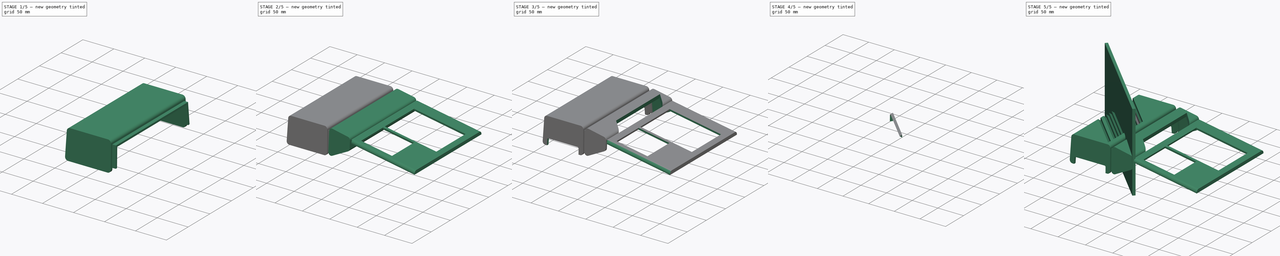
[diagram: build sequence overview — one tinted view per stage of 5, left to right]
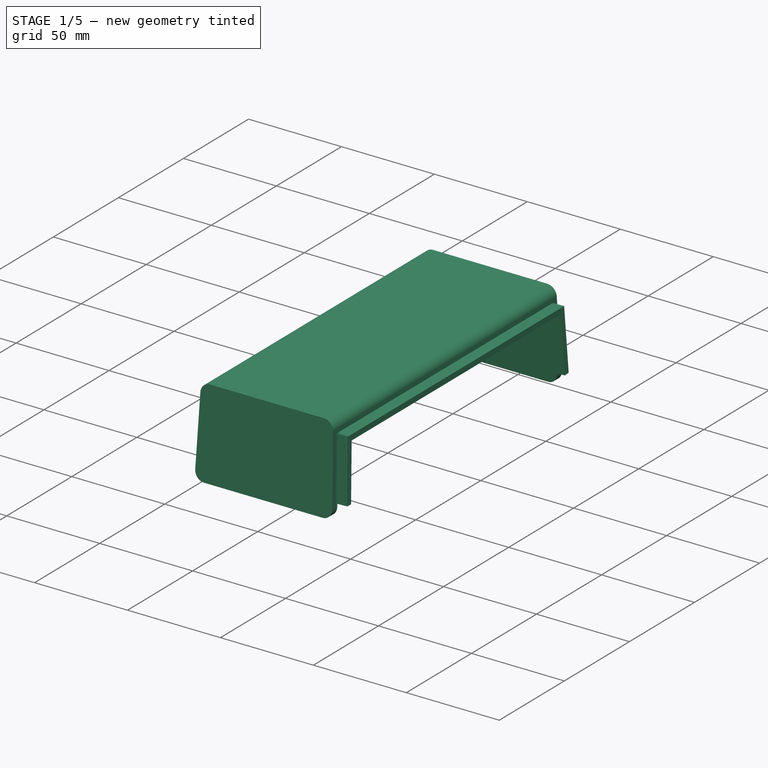
[diagram: stage 1 of 5 — iso view after this stage's code; geometry added in this stage tinted green]
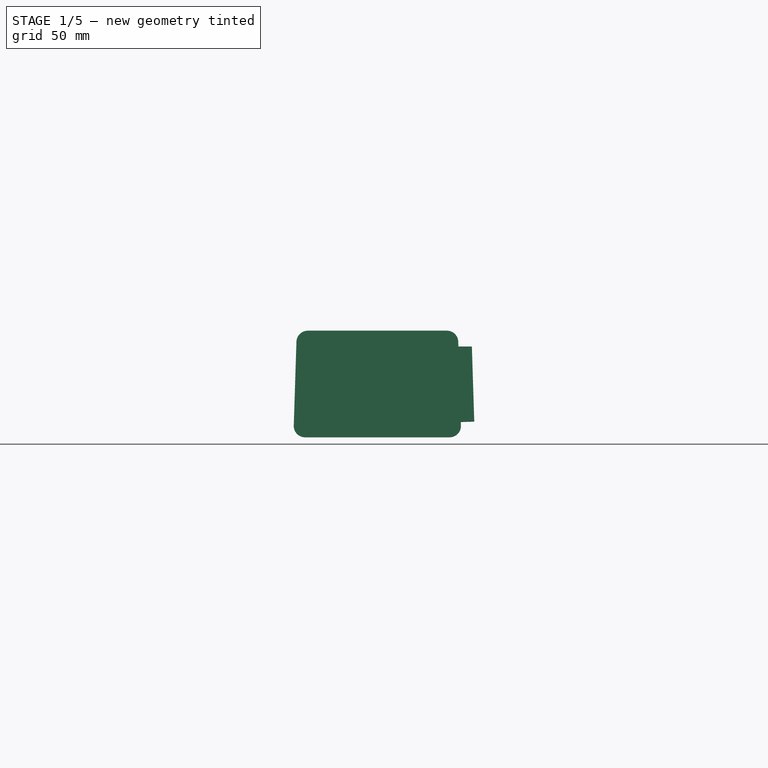
[diagram: stage 1 of 5 — front view after this stage's code; geometry added in this stage tinted green]
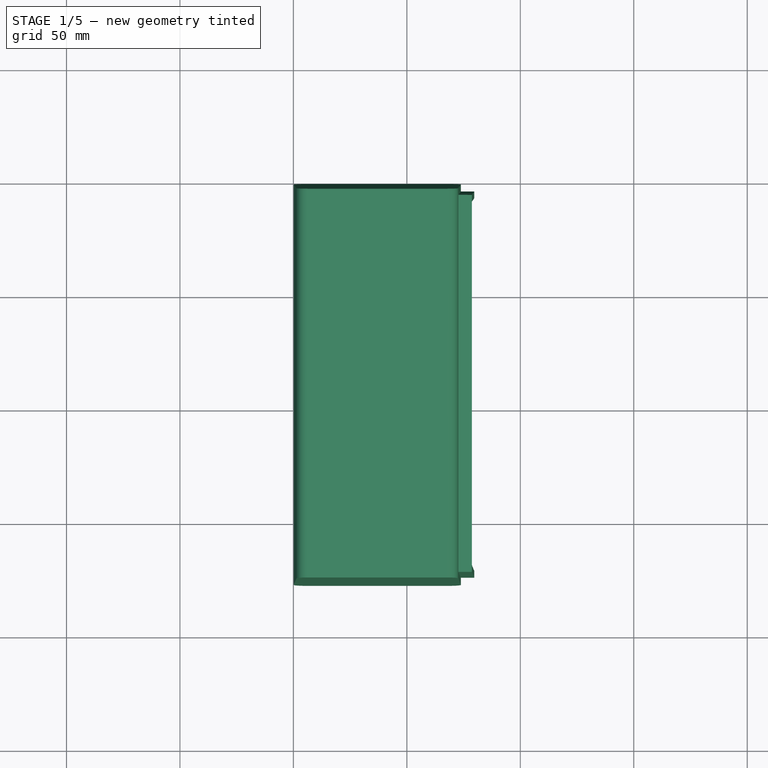
[diagram: stage 1 of 5 — top view after this stage's code; geometry added in this stage tinted green]
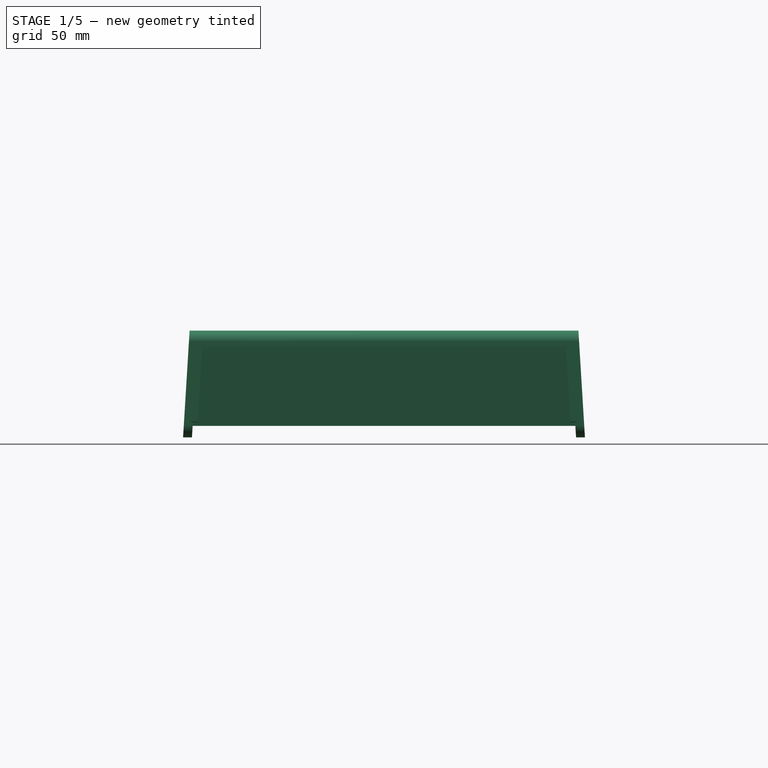
[diagram: stage 1 of 5 — right view after this stage's code; geometry added in this stage tinted green]
FCSTD DOCUMENT  (FreeCAD 0.20R29177 +426 (Git))
Label: SidecarXE85-case
License: All rights reserved
LicenseURL: http://en.wikipedia.org/wiki/All_rights_reserved
objects: Sketcher::SketchObject×19, PartDesign::Line×17, PartDesign::Plane×17, PartDesign::Body×16, Part::FeaturePython×13, PartDesign::FeatureBase×12, PartDesign::Pad×11, Surface::GeomFillSurface×11, PartDesign::Pocket×6, PartDesign::ShapeBinder×4, PartDesign::Fillet×3, PartDesign::Draft×2, Part::Feature×2, Spreadsheet::Sheet×1, PartDesign::Thickness×1, PartDesign::Boolean×1, App::Part×1, Part::Compound×1, Part::Cut×1
note: 160 computed .brp shape members not serialized (recipe doc carries the construction recipe); baked Part::Feature solids carry a one-line shape summary decoded from their .brp

FEATURE [Sketcher::SketchObject] Sketch  label="SketchBack"
  FullyConstrained = true
  MapMode = 5
  Placement = pos=(0,0,0) rot=(1,0,0;1.5708rad)
  Support = -> [XZ_Plane]
  sketch-geometry (4):
    g0: LineSegment StartX=0 StartY=12 StartZ=0 EndX=1.5 EndY=59 EndZ=0
    g1: LineSegment StartX=1.5 StartY=59 StartZ=0 EndX=72.5 EndY=59 EndZ=0
    g2: LineSegment StartX=72.5 StartY=59 StartZ=0 EndX=74 EndY=12 EndZ=0
    g3: LineSegment StartX=74 StartY=12 StartZ=0 EndX=0 EndY=12 EndZ=0
  constraints (12):
    c: PointOnObject(g0,g-2)
    c: Coincident(g0,g1)
    c: Horizontal(g1)
    c: Coincident(g1,g2)
    c: Coincident(g2,g3)
    c: Coincident(g3,g0)
    c: Horizontal(g3)
    c: DistanceX(g1,g1) = 71
    c: DistanceY(g0,g0) = 47
    c: DistanceY(g-1,g0) = 12
    c: DistanceX(g0,g0) = 1.5
    c: DistanceX(g1,g2) = 1.5
FEATURE [PartDesign::Pad] Pad  label="ExtrudeBack"
  Direction = (0,-1,-2e-16)
  Length = 177.1
  Length2 = 10
  Placement = pos=(0,0,0) rot=(1,0,0;1.5708rad)
  Profile = -> Sketch
  ReferenceAxis = -> Sketch [N_Axis]
  Type = 0
  expr: Length = <<Params>>.Width + 2.7
FEATURE [Spreadsheet::Sheet] Spreadsheet  label="Params"
  cells = A1=Width; B1(Width)=174.4; A2=BigFillet; B2(BigFillet)=5; A3=Walls; B3(Walls)=3
FEATURE [PartDesign::Fillet] Fillet  label="BigFilletBack"
  Base = -> Pad [Edge1,Edge2,Edge5,Edge8]
  BaseFeature = -> Pad
  Placement = pos=(0,0,0) rot=(1,0,0;1.5708rad)
  Radius = 5
  SupportTransform = false
  UseAllEdges = false
  expr: Radius = <<Params>>.BigFillet
FEATURE [PartDesign::Line] DatumLine  label="BottomLeftDatumLine"
  AttacherType = Attacher::AttachEngineLine
  Length = 20
  MapMode = 29
  Placement = pos=(0,-177.1,12) rot=(0.57735,-0.57735,-0.57735;2.0944rad)
  ResizeMode = 0
  Support = -> [Fillet]
FEATURE [PartDesign::Line] DatumLine001  label="BottomRightDatumLine"
  AttacherType = Attacher::AttachEngineLine
  Length = 20
  MapMode = 29
  Placement = pos=(0,2.7e-15,12) rot=(0.57735,-0.57735,-0.57735;2.0944rad)
  ResizeMode = 0
  Support = -> [Fillet]
FEATURE [PartDesign::Line] DatumLine002  label="TopLeftDatumLine"
  AttacherType = Attacher::AttachEngineLine
  AttachmentOffset = pos=(2.7,0,0) rot=(0,0,1;0rad)
  Length = 20
  MapMode = 29
  Placement = pos=(0,-174.4,59) rot=(0.57735,0.57735,0.57735;2.0944rad)
  ResizeMode = 0
  Support = -> [Fillet]
FEATURE [PartDesign::Line] DatumLine003  label="TopRightDatumLine"
  AttacherType = Attacher::AttachEngineLine
  AttachmentOffset = pos=(-2.7,0,0) rot=(0,0,1;0rad)
  Length = 20
  MapMode = 29
  Placement = pos=(0,-2.7,59) rot=(0.57735,0.57735,0.57735;2.0944rad)
  ResizeMode = 0
  Support = -> [Fillet]
FEATURE [PartDesign::Plane] DatumPlane  label="LeftCutDatumPlane"
  Length = 288.031
  MapMode = 13
  Placement = pos=(0.333333,-175.3,43.3333) rot=(0,0.727101,0.68653;3.14159rad)
  ResizeMode = 0
  Support = -> [DatumLine002,DatumLine]
  Width = 126.761
FEATURE [PartDesign::Plane] DatumPlane001  label="RightCutDatumPlane"
  Length = 288.031
  MapMode = 13
  Placement = pos=(0.333333,-1.8,43.3333) rot=(0,0.68653,0.727101;3.14159rad)
  ResizeMode = 0
  Support = -> [DatumLine003,DatumLine001]
  Width = 126.761
FEATURE [PartDesign::Draft] Draft  label="DraftBack"
  Angle = 3.5
  Base = -> Fillet [Face5,Face2]
  BaseFeature = -> Fillet
  NeutralPlane = -> Fillet [Face6]
  Placement = pos=(0,0,0) rot=(1,0,0;1.5708rad)
  Reversed = true
  SupportTransform = false
FEATURE [Sketcher::SketchObject] Sketch003  label="BackCutSchema"
  ExternalGeometry = -> [Draft]
  FullyConstrained = true
  MapMode = 5
  Placement = pos=(-0.382589,0,0.0122103) rot=(-0.695738,0,0.718296;3.14159rad)
  Support = -> [Draft]
  expr: Constraints[4] = 90 - 3.5
  expr: Constraints[5] = 90 - 3.5
  expr: Constraints[6] = <<Params>>.Width - 2 * <<Params>>.Walls - 4
  sketch-geometry (6):
    g0: LineSegment StartX=0 StartY=3.03652 StartZ=0 EndX=-54.1749 EndY=6.35 EndZ=0
    g1: LineSegment StartX=-54.1749 StartY=170.75 StartZ=0 EndX=0 EndY=174.063 EndZ=0
    g2: LineSegment StartX=0 StartY=174.063 StartZ=0 EndX=0 EndY=3.03652 EndZ=0
    g3: LineSegment StartX=-54.1749 StartY=174.521 StartZ=0 EndX=-54.1749 EndY=170.75 EndZ=0
    g4: LineSegment StartX=-54.1749 StartY=6.35 StartZ=0 EndX=-54.1749 EndY=2.57859 EndZ=0
    g5: LineSegment StartX=-54.1749 StartY=170.75 StartZ=0 EndX=-54.1749 EndY=6.35 EndZ=0
  constraints (16):
    c: PointOnObject(g0,g-2)
    c: PointOnObject(g1,g-2)
    c: Coincident(g1,g2)
    c: Coincident(g2,g0)
    c: Angle(g1,g2) = 1.50971
    c: Angle(g2,g0) = 1.50971
    c: DistanceY(g0,g1) = 164.4
    c: Coincident(g3,g-3)
    c: Coincident(g3,g1)
    c: Coincident(g4,g0)
    c: Coincident(g4,g-4)
    c: Equal(g3,g4)
    c: Coincident(g5,g1)
    c: Coincident(g5,g0)
    c: Vertical(g5)
    c: Vertical(g3)
FEATURE [PartDesign::Pocket] Pocket  label="BackCut"
  BaseFeature = -> Draft
  Direction = (0.999491,0,-0.0318987)
  Length = 0
  Length2 = 5
  Placement = pos=(0,0,0) rot=(1,0,0;1.5708rad)
  Profile = -> Sketch003
  ReferenceAxis = -> Sketch003 [N_Axis]
  Type = 3
  UpToFace = -> Draft [Face10]
FEATURE [PartDesign::Body] Body001  label="Middle"
  Group = -> [Sketch001,Pad001,Fillet001,DatumPlane002,Draft001,Sketch005,Pocket002]
  Origin = -> Origin001
  Tip = -> Pocket002
FEATURE [PartDesign::Plane] DatumPlane004  label="SevenMmBelowTopDatumPlane"
  AttachmentOffset = pos=(0,0,-7) rot=(0,0,1;0rad)
  Length = 302.278
  MapMode = 5
  Placement = pos=(0,1.15e-14,52) rot=(0,0,1;3.14159rad)
  ResizeMode = 0
  Support = -> [Pocket]
  Width = 247.656
FEATURE [Sketcher::SketchObject] Sketch006  label="ConnectionBackMiddleSketch"
  ExternalGeometry = -> [Pocket]
  FullyConstrained = false
  MapMode = 5
  Placement = pos=(0,1.15e-14,52) rot=(0,0,1;3.14159rad)
  Support = -> [DatumPlane004]
  expr: Constraints[8] = <<Params>>.Walls * 3
  sketch-geometry (4):
    g0: LineSegment StartX=-78.6545 StartY=170.871 StartZ=0 EndX=-69.6545 EndY=170.871 EndZ=0
    g1: LineSegment StartX=-69.6545 StartY=170.871 StartZ=0 EndX=-69.6545 EndY=6.22859 EndZ=0
    g2: LineSegment StartX=-69.6545 StartY=6.22859 StartZ=0 EndX=-78.6545 EndY=6.22859 EndZ=0
    g3: LineSegment StartX=-78.6545 StartY=6.22859 StartZ=0 EndX=-78.6545 EndY=170.871 EndZ=0
  constraints (9):
    c: Coincident(g0,g1)
    c: Coincident(g1,g2)
    c: Coincident(g2,g3)
    c: Coincident(g3,g0)
    c: Horizontal(g0)
    c: Horizontal(g2)
    c: Vertical(g1)
    c: Vertical(g3)
    c: DistanceX(g0,g0) = 9
FEATURE [PartDesign::Pad] Pad003  label="ConnectionBackMiddleTop"
  BaseFeature = -> Pocket
  Direction = (0,-2e-16,1)
  Length = 3
  Length2 = 10
  Placement = pos=(0,0,0) rot=(1,0,0;1.5708rad)
  Profile = -> Sketch006
  ReferenceAxis = -> Sketch006 [N_Axis]
  Reversed = true
  Type = 0
  expr: Length = <<Params>>.Walls
FEATURE [PartDesign::Plane] DatumPlane005  label="InsideRightWallDatumPlane"
  AttachmentOffset = pos=(0,0,-3) rot=(0,0,1;0rad)
  Length = 288.15
  MapMode = 5
  Placement = pos=(0,-2.26319,-0.138423) rot=(-1,0,0;1.50971rad)
  ResizeMode = 0
  Support = -> [Pad003]
  Width = 127.609
  expr: .AttachmentOffset.Base.z = -<<Params>>.Walls
FEATURE [Sketcher::SketchObject] Sketch007  label="ConnectionBackMiddleSideOneSketch"
  ExternalGeometry = -> [Pad003]
  FullyConstrained = true
  MapMode = 5
  Placement = pos=(0,-2.26319,-0.138423) rot=(-1,0,0;1.50971rad)
  Support = -> [DatumPlane005]
  expr: Constraints[7] = <<Params>>.Walls * 3
  sketch-geometry (4):
    g0: LineSegment StartX=78.6545 StartY=-52.2833 StartZ=0 EndX=69.659 EndY=-51.9967 EndZ=0
    g1: LineSegment StartX=69.659 StartY=-51.9967 StartZ=0 EndX=70.7097 EndY=-19.0134 EndZ=0
    g2: LineSegment StartX=70.7097 StartY=-19.0134 StartZ=0 EndX=79.7052 EndY=-19.3 EndZ=0
    g3: LineSegment StartX=79.7052 StartY=-19.3 StartZ=0 EndX=78.6545 EndY=-52.2833 EndZ=0
  constraints (11):
    c: Coincident(g0,g1)
    c: Coincident(g1,g2)
    c: Coincident(g2,g3)
    c: Parallel(g0,g2)
    c: Angle(g2,g3) = 1.5708
    c: Angle(g1,g2) = 1.5708
    c: Distance(g0,g1) = 33
    c: Distance(g2,g1) = 9
    c: Parallel(g1,g-3)
    c: Coincident(g0,g-5)
    c: Coincident(g3,g0)
FEATURE [PartDesign::Pad] Pad004  label="ConnectionBackMiddleSideOne"
  BaseFeature = -> Pad003
  Direction = (0,0.998135,0.0610485)
  Length = 3
  Length2 = 10
  Placement = pos=(0,0,0) rot=(1,0,0;1.5708rad)
  Profile = -> Sketch007
  ReferenceAxis = -> Sketch007 [N_Axis]
  Reversed = true
  Type = 0
  expr: Length = <<Params>>.Walls
FEATURE [PartDesign::Line] DatumLine006
  AttacherType = Attacher::AttachEngineLine
  Length = 20
  MapMode = 29
  Placement = pos=(78.6545,1.15e-14,52) rot=(1,0,0;1.5708rad)
  ResizeMode = 0
  Support = -> [Pad004]
FEATURE [PartDesign::Plane] DatumPlane006  label="InsideLeftWallDatumPlane"
  AttachmentOffset = pos=(0,0,-3) rot=(0,0,1;0rad)
  Length = 288.15
  MapMode = 5
  Placement = pos=(0,-174.177,10.6531) rot=(1,0,0;1.50971rad)
  ResizeMode = 0
  Support = -> [Pad004]
  Width = 127.609
FEATURE [Sketcher::SketchObject] Sketch008  label="ConnectionBackMiddleSideTwoSketch"
  ExternalGeometry = -> [Pad004]
  FullyConstrained = true
  MapMode = 5
  Placement = pos=(0,-174.177,10.6531) rot=(1,0,0;1.50971rad)
  Support = -> [DatumPlane006]
  expr: Constraints[7] = <<Params>>.Walls * 3
  sketch-geometry (4):
    g0: LineSegment StartX=78.6545 StartY=41.4716 StartZ=0 EndX=79.7052 EndY=8.48829 EndZ=0
    g1: LineSegment StartX=79.7052 StartY=8.48829 StartZ=0 EndX=70.7097 EndY=8.20174 EndZ=0
    g2: LineSegment StartX=70.7097 StartY=8.20174 StartZ=0 EndX=69.659 EndY=41.185 EndZ=0
    g3: LineSegment StartX=69.659 StartY=41.185 StartZ=0 EndX=78.6545 EndY=41.4716 EndZ=0
  constraints (12):
    c: Coincident(g0,g1)
    c: Coincident(g1,g2)
    c: Coincident(g2,g3)
    c: Coincident(g3,g0)
    c: Parallel(g3,g1)
    c: Parallel(g2,g0)
    c: Angle(g1,g2) = 1.5708
    c: Distance(g2,g0) = 9
    c: Distance(g0,g0) = 33
    c: Parallel(g2,g-3)
    c: PointOnObject(g0,g-5)
    c: PointOnObject(g0,g-4)
FEATURE [PartDesign::Pad] Pad005  label="ConnectionBackMiddleSideTwo"
  BaseFeature = -> Pad004
  Direction = (0,-0.998135,0.0610485)
  Length = 3
  Length2 = 10
  Placement = pos=(0,0,0) rot=(1,0,0;1.5708rad)
  Profile = -> Sketch008
  ReferenceAxis = -> Sketch008 [N_Axis]
  Reversed = true
  Type = 0
  expr: Length = <<Params>>.Walls
FEATURE [PartDesign::Body] Body002  label="KeyboardTop"
  Group = -> [Sketch002,Pad002,Fillet002,Thickness,Sketch004,Pocket001,DatumPlane007,DatumLine007,DatumLine008,DatumLine009,Sketch009,Pad006]
  Origin = -> Origin002
  Placement = pos=(0,-1.35,0) rot=(0,0,1;0rad)
  Tip = -> Pad006
FEATURE [PartDesign::Plane] DatumPlane008
  Length = 119.439
  MapMode = 5
  Placement = pos=(-0.382589,0,0.0122103) rot=(-0.695738,0,0.718296;3.14159rad)
  ResizeMode = 0
  Support = -> [Pad]
  Width = 229.393
FEATURE [Sketcher::SketchObject] Sketch010  label="BackWallSketch"
  ExternalGeometry = -> [Pad005]
  FullyConstrained = true
  MapMode = 5
  Placement = pos=(-0.382589,0,0.0122103) rot=(-0.695738,0,0.718296;3.14159rad)
  Support = -> [DatumPlane008]
  sketch-geometry (4):
    g0: LineSegment StartX=-54.1749 StartY=170.75 StartZ=0 EndX=-17.156 EndY=173.014 EndZ=0
    g1: LineSegment StartX=-17.156 StartY=173.014 StartZ=0 EndX=-17.156 EndY=4.08583 EndZ=0
    g2: LineSegment StartX=-17.156 StartY=4.08583 StartZ=0 EndX=-54.1749 EndY=6.35 EndZ=0
    g3: LineSegment StartX=-54.1749 StartY=6.35 StartZ=0 EndX=-54.1749 EndY=170.75 EndZ=0
  constraints (8):
    c: Coincident(g0,g1)
    c: Coincident(g1,g-3)
    c: Coincident(g1,g2)
    c: Coincident(g2,g-3)
    c: Coincident(g2,g3)
    c: Coincident(g3,g0)
    c: Coincident(g0,g-4)
    c: Coincident(g0,g-4)
FEATURE [PartDesign::Pad] Pad007  label="BackWall"
  BaseFeature = -> Pad005
  Direction = (-0.999491,0,0.0318987)
  Length = 3
  Length2 = 10
  Placement = pos=(0,0,0) rot=(1,0,0;1.5708rad)
  Profile = -> Sketch010
  ReferenceAxis = -> Sketch010 [N_Axis]
  Reversed = true
  Type = 0
  expr: Length = <<Params>>.Walls
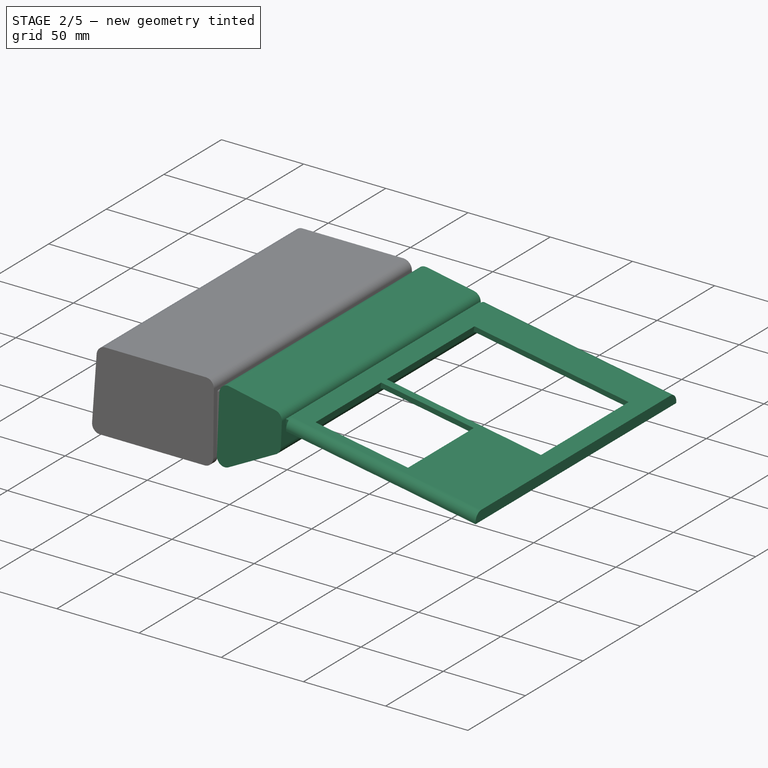
[diagram: stage 2 of 5 — iso view after this stage's code; geometry added in this stage tinted green]
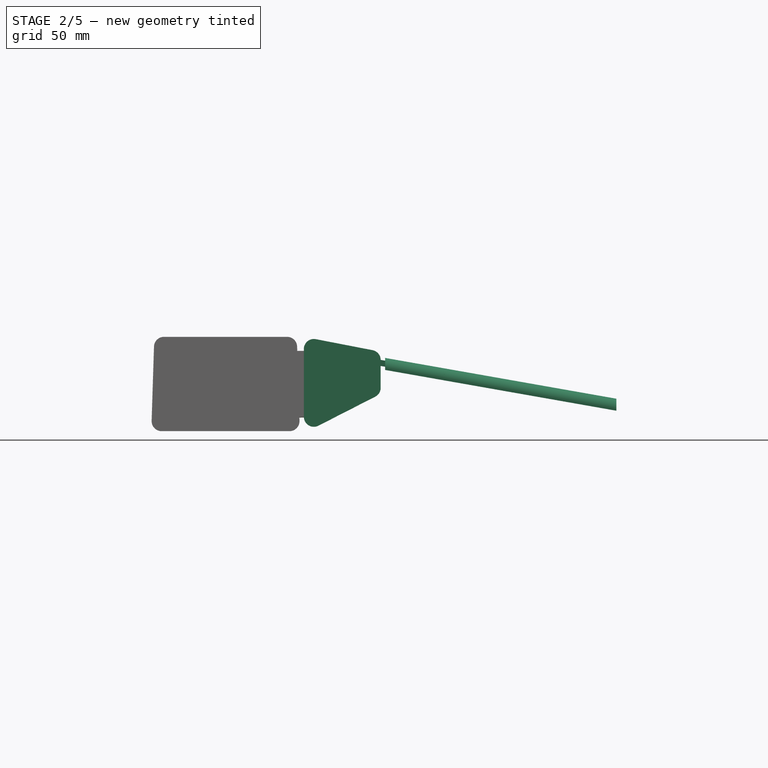
[diagram: stage 2 of 5 — front view after this stage's code; geometry added in this stage tinted green]
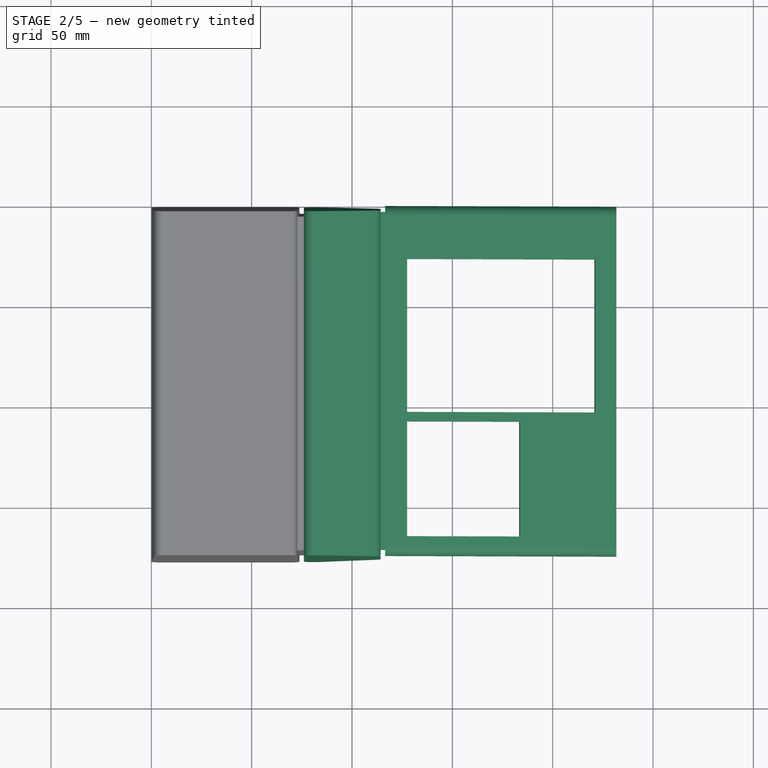
[diagram: stage 2 of 5 — top view after this stage's code; geometry added in this stage tinted green]
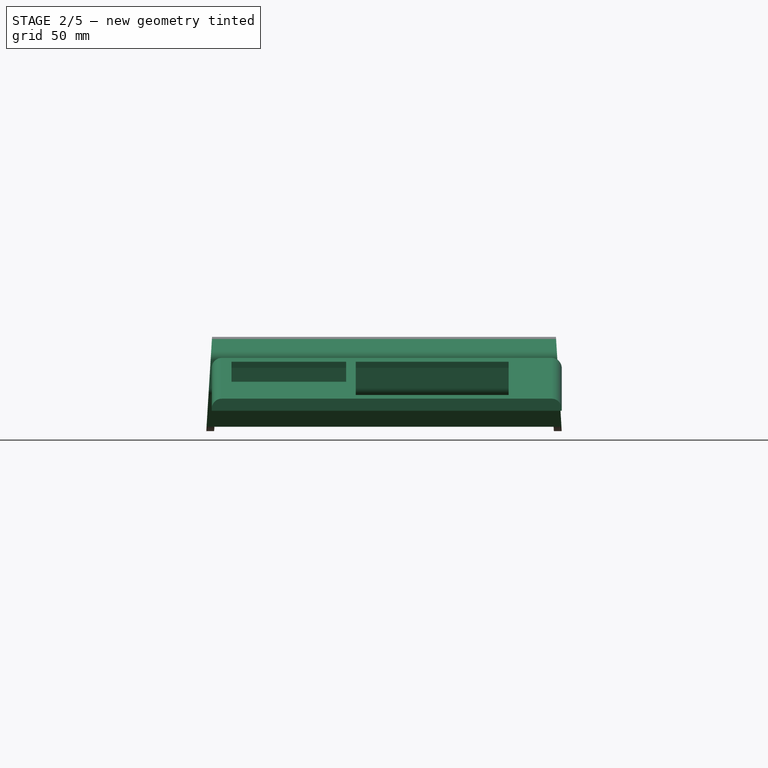
[diagram: stage 2 of 5 — right view after this stage's code; geometry added in this stage tinted green]
FEATURE [Sketcher::SketchObject] Sketch001  label="SketchMiddle"
  FullyConstrained = true
  MapMode = 5
  Placement = pos=(0,0,0) rot=(1,0,0;1.5708rad)
  Support = -> [XZ_Plane001]
  sketch-geometry (4):
    g0: LineSegment StartX=76 StartY=11 StartZ=0 EndX=76 EndY=59 EndZ=0
    g1: LineSegment StartX=76 StartY=59 StartZ=0 EndX=114.286 EndY=51.5741 EndZ=0
    g2: LineSegment StartX=114.286 StartY=51.5741 StartZ=0 EndX=114.286 EndY=30.5741 EndZ=0
    g3: LineSegment StartX=114.286 StartY=30.5741 StartZ=0 EndX=76 EndY=11 EndZ=0
  constraints (12):
    c: Vertical(g0)
    c: Coincident(g0,g1)
    c: Coincident(g1,g2)
    c: Vertical(g2)
    c: Coincident(g2,g3)
    c: Coincident(g3,g0)
    c: Distance(g0,g1) = 39
    c: DistanceY(g2,g1) = 21
    c: Distance(g2,g0) = 43
    c: DistanceY(g0,g0) = 48
    c: DistanceY(g-1,g0) = 11
    c: DistanceX(g-1,g0) = 76
FEATURE [PartDesign::Pad] Pad001  label="ExtrudeMiddle"
  Direction = (0,-1,-2e-16)
  Length = 177.1
  Length2 = 10
  Placement = pos=(0,0,0) rot=(1,0,0;1.5708rad)
  Profile = -> Sketch001
  ReferenceAxis = -> Sketch001 [N_Axis]
  Type = 0
  expr: Length = <<Params>>.Width + 2.7
FEATURE [PartDesign::Fillet] Fillet001  label="BigFilletMiddle"
  Base = -> Pad001 [Edge1,Edge2,Edge5,Edge8]
  BaseFeature = -> Pad001
  Placement = pos=(0,0,0) rot=(1,0,0;1.5708rad)
  Radius = 5
  SupportTransform = false
  UseAllEdges = false
  expr: Radius = <<Params>>.BigFillet
FEATURE [Sketcher::SketchObject] Sketch002  label="SketchKeyboardTop"
  FullyConstrained = true
  MapMode = 5
  Placement = pos=(0,0,0) rot=(1,0,0;1.5708rad)
  Support = -> [XZ_Plane002]
  sketch-geometry (4):
    g0: LineSegment StartX=116.5 StartY=42.5 StartZ=0 EndX=116.5 EndY=48.5 EndZ=0
    g1: LineSegment StartX=116.5 StartY=48.5 StartZ=0 EndX=231.723 EndY=28.1832 EndZ=0
    g2: LineSegment StartX=231.723 StartY=28.1832 StartZ=0 EndX=231.723 EndY=22.1832 EndZ=0
    g3: LineSegment StartX=231.723 StartY=22.1832 StartZ=0 EndX=116.5 EndY=42.5 EndZ=0
  constraints (12):
    c: Vertical(g0)
    c: Coincident(g0,g1)
    c: Coincident(g1,g2)
    c: Vertical(g2)
    c: Coincident(g2,g3)
    c: Coincident(g3,g0)
    c: Parallel(g1,g3)
    c: Angle(g1,g-1) = 0.174533
    c: DistanceY(g0,g0) = 6
    c: Distance(g0,g2) = 117
    c: DistanceX(g-1,g0) = 116.5
    c: DistanceY(g-1,g0) = 42.5
FEATURE [PartDesign::Pad] Pad002  label="ExtrudeKeyboardTop"
  Direction = (0,-1,-2e-16)
  Length = 174.4
  Length2 = 10
  Placement = pos=(0,0,0) rot=(1,0,0;1.5708rad)
  Profile = -> Sketch002
  ReferenceAxis = -> Sketch002 [N_Axis]
  Type = 0
  expr: Length = <<Params>>.Width
FEATURE [PartDesign::Fillet] Fillet002  label="BigFilletKeyboardTop"
  Base = -> Pad002 [Edge7,Edge6]
  BaseFeature = -> Pad002
  Placement = pos=(0,0,0) rot=(1,0,0;1.5708rad)
  Radius = 5
  SupportTransform = false
  UseAllEdges = false
  expr: Radius = <<Params>>.BigFillet
FEATURE [PartDesign::Plane] DatumPlane002  label="BottomDatumPlane"
  Length = 172.831
  MapMode = 5
  Placement = pos=(0,2.7e-15,12) rot=(1,0,0;3.14159rad)
  ResizeMode = 0
  Support = -> [Draft]
  Width = 235.51
FEATURE [PartDesign::Draft] Draft001  label="DraftMiddle"
  Angle = 3.5
  Base = -> Fillet001 [Face2,Face5]
  BaseFeature = -> Fillet001
  NeutralPlane = -> DatumPlane002
  Placement = pos=(0,0,0) rot=(1,0,0;1.5708rad)
  Reversed = true
  SupportTransform = false
FEATURE [PartDesign::Thickness] Thickness
  Base = -> Fillet002 [Face7]
  BaseFeature = -> Fillet002
  Intersection = false
  Join = 1
  Mode = 0
  Reversed = true
  SupportTransform = false
  Value = 3
  expr: Value = <<Params>>.Walls
FEATURE [PartDesign::Plane] DatumPlane003  label="BackVerticalDatumPlane"
  Length = 228.537
  MapMode = 13
  Placement = pos=(0.109776,-116.6,11.4397) rot=(0.579188,0.579188,0.573657;2.09994rad)
  ResizeMode = 0
  Support = -> [Pocket,Z_Axis]
  Width = 112.897
FEATURE [Sketcher::SketchObject] Sketch004  label="KeyboardHoleSketch"
  ExternalGeometry = -> [Thickness]
  FullyConstrained = true
  MapMode = 5
  Placement = pos=(11.8069,0,66.9602) rot=(0,1,0;0.174533rad)
  Support = -> [Thickness]
  expr: Constraints[16] = 19.05 * 4
  expr: Constraints[17] = 19.05 * 3
  expr: Constraints[18] = 19.05 / 4
  expr: Constraints[20] = 19.05 * 5
  expr: Constraints[21] = 19.05 * 3
  sketch-geometry (10):
    g0: LineSegment StartX=117.458 StartY=-26.44 StartZ=0 EndX=212.708 EndY=-26.44 EndZ=0
    g1: LineSegment StartX=212.708 StartY=-26.44 StartZ=0 EndX=212.708 EndY=-102.64 EndZ=0
    g2: LineSegment StartX=212.708 StartY=-102.64 StartZ=0 EndX=117.458 EndY=-102.64 EndZ=0
    g3: LineSegment StartX=117.458 StartY=-102.64 StartZ=0 EndX=117.458 EndY=-26.44 EndZ=0
    g4: LineSegment StartX=117.458 StartY=-107.403 StartZ=0 EndX=174.608 EndY=-107.403 EndZ=0
    g5: LineSegment StartX=174.608 StartY=-107.403 StartZ=0 EndX=174.608 EndY=-164.553 EndZ=0
    g6: LineSegment StartX=174.608 StartY=-164.553 StartZ=0 EndX=117.458 EndY=-164.553 EndZ=0
    g7: LineSegment StartX=117.458 StartY=-164.553 StartZ=0 EndX=117.458 EndY=-107.403 EndZ=0
    g8: LineSegment StartX=117.458 StartY=-26.44 StartZ=0 EndX=117.458 EndY=-5 EndZ=0
    g9: LineSegment StartX=117.458 StartY=-164.553 StartZ=0 EndX=117.458 EndY=-169.4 EndZ=0
  constraints (30):
    c: Coincident(g0,g1)
    c: Coincident(g1,g2)
    c: Coincident(g2,g3)
    c: Coincident(g3,g0)
    c: Horizontal(g0)
    c: Horizontal(g2)
    c: Vertical(g1)
    c: Vertical(g3)
    c: Coincident(g4,g5)
    c: Coincident(g5,g6)
    c: Coincident(g6,g7)
    c: Coincident(g7,g4)
    c: Horizontal(g4)
    c: Horizontal(g6)
    c: Vertical(g5)
    c: Vertical(g7)
    c: DistanceY(g3,g3) = 76.2
    c: DistanceY(g7,g7) = 57.15
    c: DistanceY(g4,g2) = 4.7625
    c: PointOnObject(g4,g3)
    c: DistanceX(g0,g0) = 95.25
    c: DistanceX(g4,g4) = 57.15
    c: Coincident(g8,g0)
    c: PointOnObject(g8,g-4)
    c: Vertical(g8)
    c: Coincident(g9,g6)
    c: PointOnObject(g9,g-5)
    c: Vertical(g9)
    c: DistanceY(g0,g8) = 21.44
    c: DistanceX(g0,g-4) = 10.6
FEATURE [PartDesign::Pocket] Pocket001  label="KeyHoles"
  BaseFeature = -> Thickness
  Direction = (-0.173648,2e-16,-0.984808)
  Length = 5
  Length2 = 5
  Profile = -> Sketch004
  ReferenceAxis = -> Sketch004 [N_Axis]
  Type = 0
FEATURE [PartDesign::Plane] DatumPlane007
  AttachmentOffset = pos=(0,0,-1.35) rot=(0,0,1;0rad)
  Length = 311.611
  MapMode = 5
  Placement = pos=(11.5725,0,65.6307) rot=(0,1,0;0.174533rad)
  ResizeMode = 0
  Support = -> [Pocket001]
  Width = 245.425
FEATURE [PartDesign::Line] DatumLine007
  AttacherType = Attacher::AttachEngineLine
  Length = 20
  MapMode = 29
  Placement = pos=(116.5,0,48.5) rot=(1,0,0;1.5708rad)
  ResizeMode = 0
  Support = -> [Pocket001]
FEATURE [PartDesign::Line] DatumLine008
  AttacherType = Attacher::AttachEngineLine
  Length = 20
  MapMode = 29
  Placement = pos=(11.8069,-169.4,66.9602) rot=(0.60812,0.60812,0.510274;2.19793rad)
  ResizeMode = 0
  Support = -> [Pocket001]
FEATURE [PartDesign::Line] DatumLine009
  AttacherType = Attacher::AttachEngineLine
  Length = 20
  MapMode = 29
  Placement = pos=(11.8069,-5,66.9602) rot=(0.60812,0.60812,0.510274;2.19793rad)
  ResizeMode = 0
  Support = -> [Pocket001]
FEATURE [Sketcher::SketchObject] Sketch009  label="ConnectionKeyboardMiddleSketch"
  ExternalGeometry = -> [DatumLine009,DatumLine008,DatumLine007]
  FullyConstrained = true
  MapMode = 5
  Placement = pos=(11.5725,0,65.6307) rot=(0,1,0;0.174533rad)
  Support = -> [DatumPlane007]
  expr: Constraints[9] = <<Params>>.Width - 6
  sketch-geometry (7):
    g0: LineSegment StartX=108.308 StartY=-3 StartZ=0 EndX=100.308 EndY=-3 EndZ=0
    g1: LineSegment StartX=100.308 StartY=-3 StartZ=0 EndX=100.308 EndY=-171.4 EndZ=0
    g2: LineSegment StartX=100.308 StartY=-171.4 StartZ=0 EndX=108.308 EndY=-171.4 EndZ=0
    g3: LineSegment StartX=108.308 StartY=-171.4 StartZ=0 EndX=108.308 EndY=-3 EndZ=0
    g4: GeomPoint X=106.308 Y=-169.4 Z=0
    g5: LineSegment StartX=106.308 StartY=-169.4 StartZ=0 EndX=108.308 EndY=-171.4 EndZ=0
    g6: LineSegment StartX=106.308 StartY=-5 StartZ=0 EndX=108.308 EndY=-3 EndZ=0
  constraints (19):
    c: Coincident(g0,g1)
    c: Coincident(g1,g2)
    c: Coincident(g2,g3)
    c: Coincident(g3,g0)
    c: Horizontal(g0)
    c: Horizontal(g2)
    c: Vertical(g1)
    c: Vertical(g3)
    c: DistanceX(g0,g0) = 8
    c: DistanceY(g3,g3) = 168.4
    c: PointOnObject(g4,g-5)
    c: PointOnObject(g4,g-4)
    c: Coincident(g5,g4)
    c: Coincident(g5,g2)
    c: Coincident(g6,g0)
    c: Equal(g5,g6)
    c: PointOnObject(g6,g-3)
    c: PointOnObject(g6,g-5)
    c: DistanceX(g4,g2) = 2
FEATURE [PartDesign::Pad] Pad006  label="ConnectionKeyboardMiddle"
  BaseFeature = -> Pocket001
  Direction = (0.173648,-2e-16,0.984808)
  Length = 3
  Length2 = 10
  Profile = -> Sketch009
  ReferenceAxis = -> Sketch009 [N_Axis]
  Reversed = true
  Type = 0
  expr: Length = <<Params>>.Walls
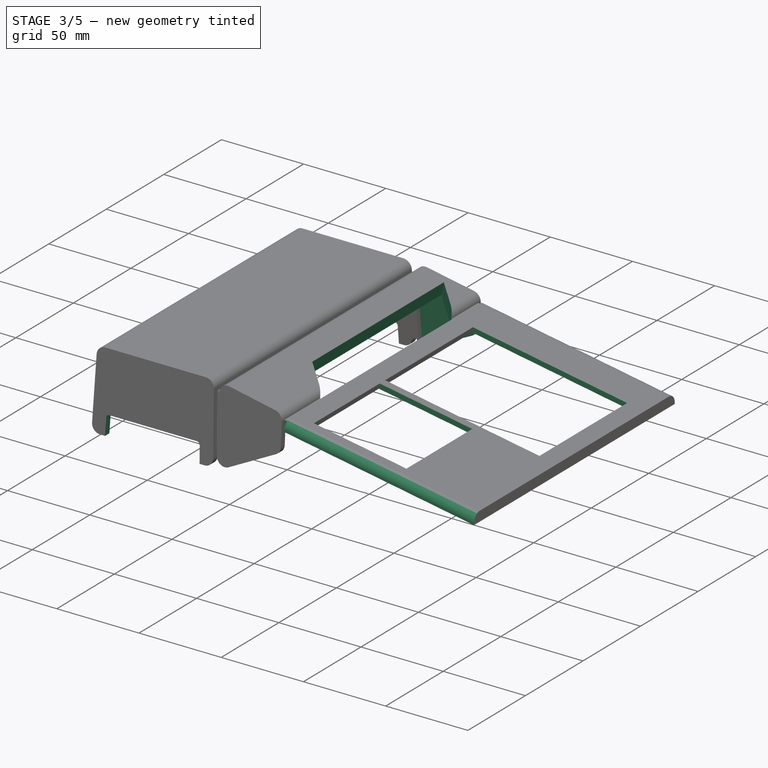
[diagram: stage 3 of 5 — iso view after this stage's code; geometry added in this stage tinted green]
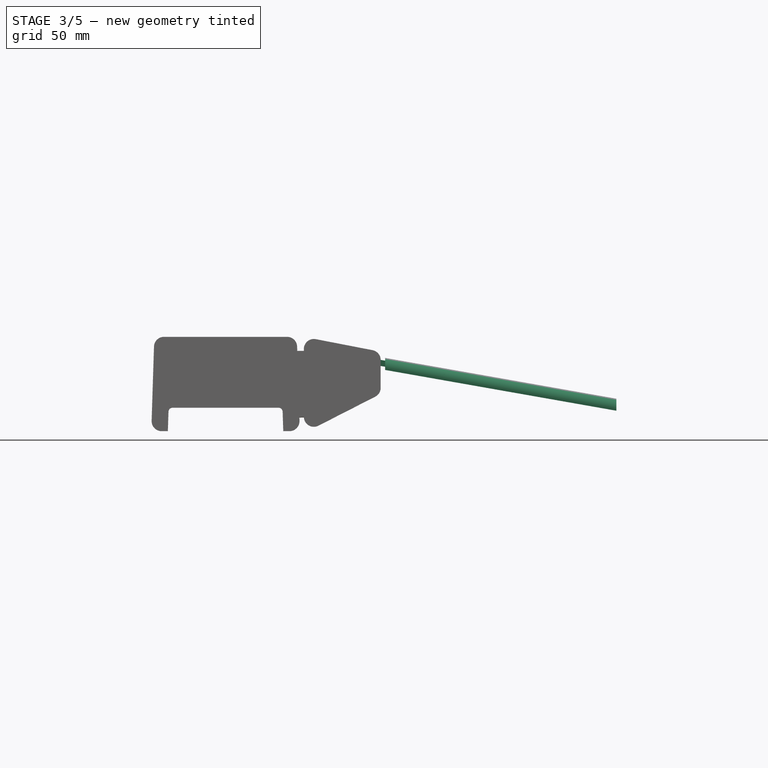
[diagram: stage 3 of 5 — front view after this stage's code; geometry added in this stage tinted green]
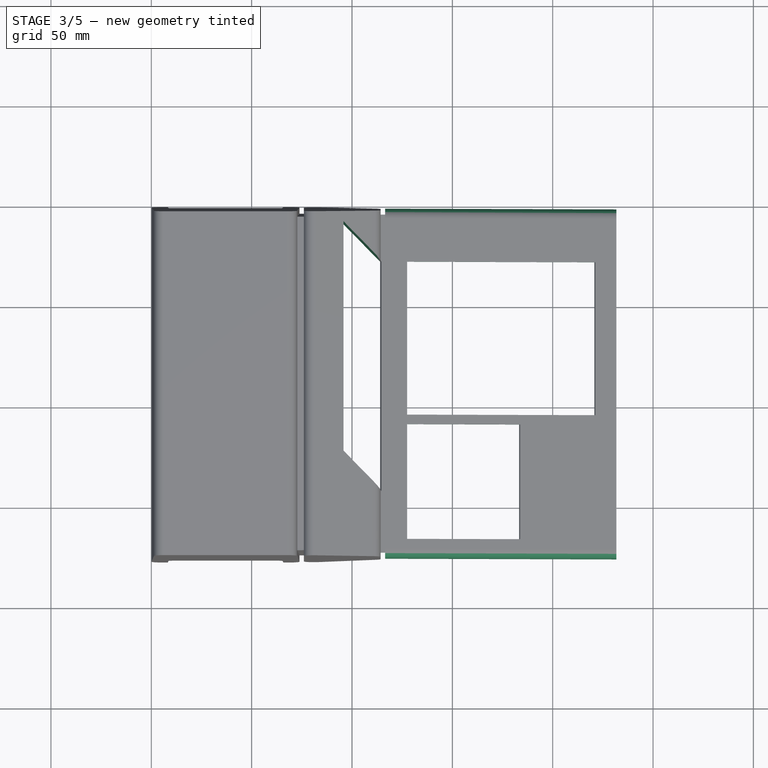
[diagram: stage 3 of 5 — top view after this stage's code; geometry added in this stage tinted green]
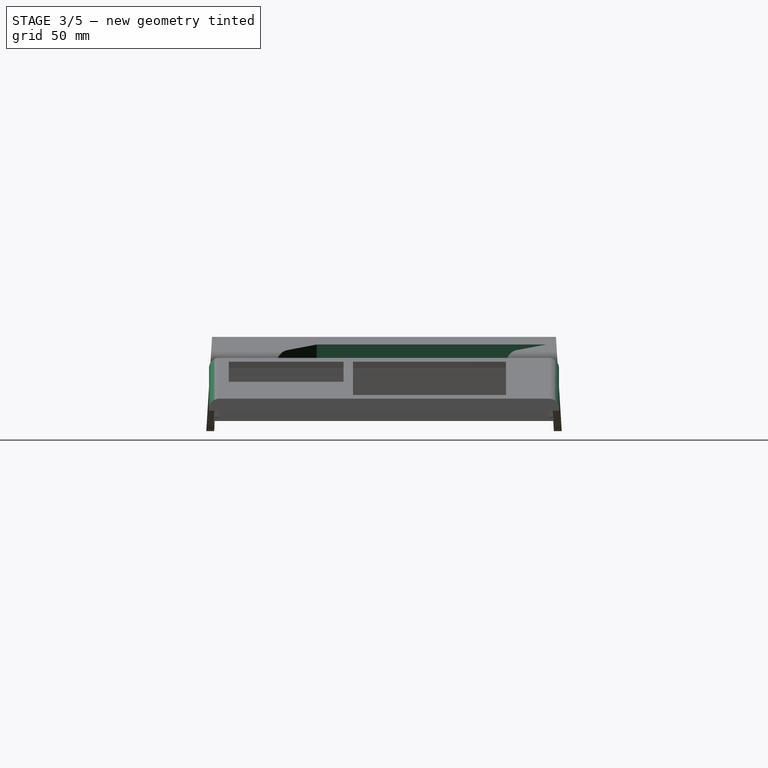
[diagram: stage 3 of 5 — right view after this stage's code; geometry added in this stage tinted green]
FEATURE [Sketcher::SketchObject] Sketch005  label="MiddlePocketSketch"
  ExternalGeometry = -> [Draft001]
  FullyConstrained = true
  MapMode = 5
  Placement = pos=(76,0,0) rot=(0.707107,0,-0.707107;3.14159rad)
  Support = -> [Draft001]
  expr: Constraints[15] = <<Params>>.Walls * 1.1
  sketch-geometry (6):
    g0: LineSegment StartX=-1.54556 StartY=174.354 StartZ=0 EndX=-51.5456 EndY=171.296 EndZ=0
    g1: LineSegment StartX=-51.5456 StartY=171.296 StartZ=0 EndX=-51.5456 EndY=5.80382 EndZ=0
    g2: LineSegment StartX=-51.5456 StartY=5.80382 StartZ=0 EndX=-1.54556 EndY=2.74569 EndZ=0
    g3: LineSegment StartX=-1.54556 StartY=2.74569 StartZ=0 EndX=-1.54556 EndY=174.354 EndZ=0
    g4: LineSegment StartX=-57.8456 StartY=174.296 StartZ=0 EndX=-51.5456 EndY=171.296 EndZ=0
    g5: LineSegment StartX=-51.5456 StartY=5.80382 StartZ=0 EndX=-57.8456 EndY=2.80403 EndZ=0
  constraints (16):
    c: Coincident(g0,g1)
    c: Vertical(g1)
    c: Coincident(g1,g2)
    c: Coincident(g2,g3)
    c: Coincident(g3,g0)
    c: Vertical(g3)
    c: Parallel(g0,g-3)
    c: Parallel(g-4,g2)
    c: Coincident(g4,g-5)
    c: Coincident(g4,g0)
    c: Coincident(g5,g1)
    c: Coincident(g5,g-5)
    c: Equal(g4,g5)
    c: DistanceX(g4,g0) = 6.3
    c: DistanceX(g0,g0) = 50
    c: DistanceY(g0,g-3) = 3.3
FEATURE [PartDesign::Pocket] Pocket002  label="MiddlePocket"
  AlongSketchNormal = false
  BaseFeature = -> Draft001
  Direction = (-0.981638,0.0116451,0.190395)
  Length = 0
  Length2 = 5
  Placement = pos=(0,0,0) rot=(1,0,0;1.5708rad)
  Profile = -> Sketch005
  ReferenceAxis = -> Draft001 [Edge17]
  Reversed = true
  Type = 3
  UpToFace = -> Draft001 [Face10]
FEATURE [PartDesign::Boolean] Boolean  label="MiddleKeyboardBool"
  BaseFeature = -> Pad007
  Group = -> [Body001,Body002]
  Type = 0
FEATURE [PartDesign::Plane] DatumPlane009
  Length = 314.568
  MapMode = 5
  Placement = pos=(13.784,-1.59e-14,71.0672) rot=(0,1,0;0.191578rad)
  ResizeMode = 0
  Support = -> [Boolean]
  Width = 248.648
FEATURE [PartDesign::Plane] DatumPlane010
  AttachmentOffset = pos=(0,0,62) rot=(0,0,1;0rad)
  Length = 228.159
  MapMode = 5
  Placement = pos=(62,-1.38e-14,1.38e-14) rot=(0.57735,0.57735,0.57735;2.0944rad)
  ResizeMode = 0
  Support = -> [YZ_Plane]
  Width = 110.059
FEATURE [PartDesign::Line] DatumLine024
  AttacherType = Attacher::AttachEngineLine
  Length = 20
  MapMode = 29
  Placement = pos=(11.8069,-27.79,66.9602) rot=(0.60812,0.60812,0.510274;2.19793rad)
  ResizeMode = 0
  Support = -> [Boolean]
FEATURE [PartDesign::Line] DatumLine025
  AttacherType = Attacher::AttachEngineLine
  Length = 20
  MapMode = 29
  Placement = pos=(116.5,0,48.5) rot=(1,0,0;1.5708rad)
  ResizeMode = 0
  Support = -> [Boolean]
FEATURE [Sketcher::SketchObject] Sketch011  label="ConsoleKeyHoleSketch"
  ExternalGeometry = -> [DatumLine024,DatumLine025]
  FullyConstrained = false
  MapMode = 5
  Placement = pos=(13.784,-1.59e-14,71.0672) rot=(0,1,0;0.191578rad)
  Support = -> [DatumPlane009]
  sketch-geometry (5):
    g0: LineSegment StartX=103.534 StartY=-27.79 StartZ=0 EndX=83.5338 EndY=-7.79 EndZ=0
    g1: LineSegment StartX=83.5338 StartY=-7.79 StartZ=0 EndX=83.5338 EndY=-122.09 EndZ=0
    g2: LineSegment StartX=83.5338 StartY=-122.09 StartZ=0 EndX=103.534 EndY=-142.09 EndZ=0
    g3: LineSegment StartX=103.534 StartY=-142.09 StartZ=0 EndX=103.534 EndY=-27.79 EndZ=0
    g4: GeomPoint X=105.134 Y=-32.429 Z=0
  constraints (13):
    c: Coincident(g1,g2)
    c: Coincident(g0,g1)
    c: Coincident(g2,g3)
    c: Coincident(g0,g3)
    c: Vertical(g1)
    c: Vertical(g3)
    c: Angle(g1,g0) = 0.785398
    c: Angle(g3,g2) = 0.785398
    c: DistanceX(g0,g0) = 20
    c: DistanceY(g1,g0) = 114.3
    c: PointOnObject(g0,g-3)
    c: PointOnObject(g4,g-4)
    c: DistanceX(g0,g4) = 1.6
FEATURE [PartDesign::Pocket] Pocket003  label="ConsoleKeyHole"
  BaseFeature = -> Boolean
  Direction = (-0.190408,2e-16,-0.981705)
  Length = 8
  Length2 = 5
  Profile = -> Sketch011
  ReferenceAxis = -> Sketch011 [N_Axis]
  Type = 0
FEATURE [PartDesign::Line] DatumLine013
  AttacherType = Attacher::AttachEngineLine
  Length = 20
  MapMode = 29
  Placement = pos=(-1.57785,-170.871,49.4394) rot=(0.583393,-0.583393,-0.565071;2.11291rad)
  ResizeMode = 0
  Support = -> [Pocket003]
FEATURE [PartDesign::Line] DatumLine014
  AttacherType = Attacher::AttachEngineLine
  Length = 20
  MapMode = 29
  Placement = pos=(1.66478,-6.22859,52.1632) rot=(0.571112,-0.571112,-0.589629;2.07607rad)
  ResizeMode = 0
  Support = -> [Pocket003]
FEATURE [Sketcher::SketchObject] Sketch012
  ExternalGeometry = -> [DatumLine013,DatumLine014,Pocket003]
  FullyConstrained = true
  MapMode = 5
  Placement = pos=(1.7281,0,54.1473) rot=(0.999873,0,-0.015951;3.14159rad)
  Support = -> [Pocket003]
  sketch-geometry (5):
    g0: GeomPoint X=2.61722 Y=6.22859 Z=0
    g1: LineSegment StartX=2.61722 StartY=6.22859 StartZ=0 EndX=66.6172 EndY=70.2286 EndZ=0
    g2: LineSegment StartX=66.6172 StartY=70.2286 StartZ=0 EndX=66.6172 EndY=170.871 EndZ=0
    g3: LineSegment StartX=66.6172 StartY=170.871 StartZ=0 EndX=2.61722 EndY=106.871 EndZ=0
    g4: LineSegment StartX=2.61722 StartY=106.871 StartZ=0 EndX=2.61722 EndY=6.22859 EndZ=0
  constraints (13):
    c: Coincident(g1,g0)
    c: Coincident(g1,g2)
    c: Vertical(g2)
    c: Coincident(g2,g3)
    c: Coincident(g3,g4)
    c: Coincident(g4,g1)
    c: Vertical(g4)
    c: Angle(g3,g2) = 0.785398
    c: Angle(g1,g4) = 0.785398
    c: DistanceX(g3,g2) = 64
    c: PointOnObject(g1,g-5)
    c: PointOnObject(g1,g-4)
    c: PointOnObject(g2,g-3)
FEATURE [PartDesign::Pad] Pad008  label="InsideVentBump"
  BaseFeature = -> Pocket003
  Direction = (-0.0318987,2e-16,-0.999491)
  Length = 3.2
  Length2 = 10
  Profile = -> Sketch012
  ReferenceAxis = -> Sketch012 [N_Axis]
  Type = 0
FEATURE [PartDesign::Line] DatumLine016
  AttacherType = Attacher::AttachEngineLine
  Length = 20
  MapMode = 29
  Placement = pos=(1.7281,-6.35,54.1473) rot=(0.583393,0.583393,0.565071;2.11291rad)
  ResizeMode = 0
  Support = -> [Pad008]
FEATURE [Sketcher::SketchObject] Sketch013
  ExternalGeometry = -> [Pad008]
  FullyConstrained = true
  MapMode = 5
  Placement = pos=(2.61588,0,-0.0834857) rot=(0.583393,0.583393,0.565071;2.11291rad)
  Support = -> [Pad008]
  sketch-geometry (4):
    g0: LineSegment StartX=-170.75 StartY=54.1749 StartZ=0 EndX=-171.362 EndY=44.1749 EndZ=0
    g1: LineSegment StartX=-171.362 StartY=44.1749 StartZ=0 EndX=-5.73837 EndY=44.1749 EndZ=0
    g2: LineSegment StartX=-5.73837 StartY=44.1749 StartZ=0 EndX=-6.35 EndY=54.1749 EndZ=0
    g3: LineSegment StartX=-6.35 StartY=54.1749 StartZ=0 EndX=-170.75 EndY=54.1749 EndZ=0
  constraints (11):
    c: PointOnObject(g0,g-3)
    c: Coincident(g0,g1)
    c: PointOnObject(g1,g-4)
    c: Horizontal(g1)
    c: Coincident(g1,g2)
    c: Coincident(g2,g3)
    c: Coincident(g3,g0)
    c: PointOnObject(g2,g-4)
    c: DistanceY(g0,g0) = 10
    c: Horizontal(g3)
    c: Coincident(g0,g-3)
FEATURE [PartDesign::Line] DatumLine017
  AttacherType = Attacher::AttachEngineLine
  Length = 20
  MapMode = 29
  Placement = pos=(66.5833,-70.2286,-2.125) rot=(0.707062,-0.707062,-0.01128;3.11903rad)
  ResizeMode = 0
  Support = -> [Pad008]
FEATURE [PartDesign::Pad] Pad009  label="InsideBackVentBump"
  BaseFeature = -> Pad008
  Direction = (0.999491,1e-16,-0.0318987)
  Length = 4
  Length2 = 10
  Profile = -> Sketch013
  ReferenceAxis = -> Sketch013 [N_Axis]
  Type = 0
FEATURE [PartDesign::Line] DatumLine019
  AttacherType = Attacher::AttachEngineLine
  Length = 20
  MapMode = 29
  Placement = pos=(67.657,0,59) rot=(1,0,0;1.5708rad)
  ResizeMode = 0
  Support = -> [Pad009]
FEATURE [PartDesign::Line] DatumLine023
  AttacherType = Attacher::AttachEngineLine
  Length = 20
  MapMode = 29
  Placement = pos=(69.6545,0,49) rot=(0,0.707107,0.707107;3.14159rad)
  ResizeMode = 0
  Support = -> [Pad003]
FEATURE [PartDesign::Line] DatumLine026
  AttacherType = Attacher::AttachEngineLine
  Length = 20
  MapMode = 46
  Placement = pos=(6.34297,-174.225,59) rot=(0,0,1;3.14159rad)
  ResizeMode = 0
  Support = -> [Pad009]
FEATURE [PartDesign::Plane] DatumPlane011
  Length = 228.21
  MapMode = 13
  Placement = pos=(6.34297,-117.108,59.3333) rot=(0.57735,-0.57735,-0.57735;2.0944rad)
  ResizeMode = 0
  Support = -> [DatumLine026,Pad009]
  Width = 110.444
FEATURE [PartDesign::Plane] DatumPlane012
  AttachmentOffset = pos=(0,0,-14) rot=(0,0,1;0rad)
  Length = 302.278
  MapMode = 5
  Placement = pos=(0,0,45) rot=(0,0,1;0rad)
  ResizeMode = 0
  Support = -> [Pad009]
  Width = 247.656
FEATURE [PartDesign::Plane] DatumPlane013
  AttachmentOffset = pos=(0,0,-6) rot=(0,0,1;0rad)
  Length = 302.278
  MapMode = 5
  Placement = pos=(0,0,53) rot=(0,0,1;0rad)
  ResizeMode = 0
  Support = -> [Pad009]
  Width = 247.656
FEATURE [Sketcher::SketchObject] Sketch018  label="JoystickOpening"
  ExternalGeometry = -> [Pad009]
  FullyConstrained = true
  MapMode = 5
  Placement = pos=(0,0,0) rot=(1,0,0;1.5708rad)
  Support = -> [XZ_Plane003]
  sketch-geometry (12):
    g0: LineSegment StartX=8.25 StartY=12 StartZ=0 EndX=8.56269 EndY=21.7143 EndZ=0
    g1: LineSegment StartX=10.5617 StartY=23.65 StartZ=0 EndX=63.4383 EndY=23.65 EndZ=0
    g2: LineSegment StartX=65.4373 StartY=21.7143 StartZ=0 EndX=65.75 EndY=12 EndZ=0
    g3: LineSegment StartX=65.75 StartY=12 StartZ=0 EndX=8.25 EndY=12 EndZ=0
    g4: LineSegment StartX=5.16212 StartY=12 StartZ=0 EndX=8.25 EndY=12 EndZ=0
    g5: LineSegment StartX=65.75 StartY=12 StartZ=0 EndX=68.8379 EndY=12 EndZ=0
    g6: LineSegment StartX=8.25 StartY=12 StartZ=0 EndX=65.375 EndY=23.65 EndZ=0
    g7: LineSegment StartX=8.625 StartY=23.65 StartZ=0 EndX=65.75 EndY=12 EndZ=0
    g8: ArcOfCircle CenterX=10.5617 CenterY=21.65 CenterZ=0 NormalX=0 NormalY=0 NormalZ=1 AngleXU=0 Radius=2 StartAngle=1.5708 EndAngle=3.10941
    g9: GeomPoint X=8.625 Y=23.65 Z=0
    g10: ArcOfCircle CenterX=63.4383 CenterY=21.65 CenterZ=0 NormalX=0 NormalY=0 NormalZ=1 AngleXU=0 Radius=2 StartAngle=0.0321777 EndAngle=1.5708
    g11: GeomPoint X=65.375 Y=23.65 Z=0
  constraints (28):
    c: Horizontal(g1)
    c: Coincident(g2,g3)
    c: Coincident(g3,g0)
    c: Horizontal(g3)
    c: DistanceX(g9,g11) = 56.75
    c: PointOnObject(g0,g-3)
    c: Coincident(g4,g-3)
    c: Coincident(g4,g0)
    c: Coincident(g5,g2)
    c: Coincident(g5,g-3)
    c: Equal(g4,g5)
    c: Coincident(g6,g0)
    c: Coincident(g6,g11)
    c: Coincident(g7,g9)
    c: Coincident(g7,g2)
    c: Equal(g6,g7)
    c: DistanceY(g0,g9) = 11.65
    c: DistanceX(g3,g3) = 57.5
    c: PointOnObject(g9,g0)
    c: PointOnObject(g9,g1)
    c: Tangent(g0,g8) = 1.5708
    c: Tangent(g1,g8) = 1.5708
    c: PointOnObject(g11,g1)
    c: PointOnObject(g11,g2)
    c: Tangent(g1,g10) = 1.5708
    c: Tangent(g2,g10) = 1.5708
    c: Radius(g8) = 2
    c: Radius(g10) = 2
FEATURE [PartDesign::Pocket] Pocket004  label="RightJoystickPorts"
  BaseFeature = -> Pad009
  Direction = (0,1,2e-16)
  Length = 5
  Length2 = 5
  Profile = -> Sketch018
  ReferenceAxis = -> Sketch018 [N_Axis]
  Reversed = true
  Type = 0
FEATURE [PartDesign::Plane] DatumPlane014
  AttachmentOffset = pos=(0,0,179.4) rot=(0,0,1;0rad)
  Length = 286.092
  MapMode = 3
  Placement = pos=(0,-179.4,3.98e-14) rot=(1,0,0;1.5708rad)
  ResizeMode = 0
  Support = -> [Pocket004]
  Width = 113.37
  expr: .AttachmentOffset.Base.z = <<Params>>.Width + 5
FEATURE [Sketcher::SketchObject] Sketch019
  ExternalGeometry = -> [Pocket004]
  FullyConstrained = true
  MapMode = 5
  Placement = pos=(0,-179.4,3.98e-14) rot=(1,0,0;1.5708rad)
  Support = -> [DatumPlane014]
  sketch-geometry (12):
    g0: LineSegment StartX=8.25 StartY=12 StartZ=0 EndX=8.56269 EndY=21.7143 EndZ=0
    g1: LineSegment StartX=10.5617 StartY=23.65 StartZ=0 EndX=63.4383 EndY=23.65 EndZ=0
    g2: LineSegment StartX=65.4373 StartY=21.7143 StartZ=0 EndX=65.75 EndY=12 EndZ=0
    g3: LineSegment StartX=65.75 StartY=12 StartZ=0 EndX=8.25 EndY=12 EndZ=0
    g4: LineSegment StartX=8.25 StartY=12 StartZ=0 EndX=65.375 EndY=23.65 EndZ=0
    g5: LineSegment StartX=8.625 StartY=23.65 StartZ=0 EndX=65.75 EndY=12 EndZ=0
    g6: LineSegment StartX=5.16212 StartY=12 StartZ=0 EndX=8.25 EndY=12 EndZ=0
    g7: LineSegment StartX=65.75 StartY=12 StartZ=0 EndX=68.8379 EndY=12 EndZ=0
    g8: ArcOfCircle CenterX=10.5617 CenterY=21.65 CenterZ=0 NormalX=0 NormalY=0 NormalZ=1 AngleXU=0 Radius=2 StartAngle=1.5708 EndAngle=3.10941
    g9: GeomPoint X=8.625 Y=23.65 Z=0
    g10: ArcOfCircle CenterX=63.4383 CenterY=21.65 CenterZ=0 NormalX=0 NormalY=0 NormalZ=1 AngleXU=0 Radius=2 StartAngle=0.0321777 EndAngle=1.5708
    g11: GeomPoint X=65.375 Y=23.65 Z=0
  constraints (28):
    c: PointOnObject(g0,g-3)
    c: Horizontal(g1)
    c: PointOnObject(g2,g-3)
    c: Coincident(g2,g3)
    c: Coincident(g3,g0)
    c: Coincident(g4,g0)
    c: Coincident(g4,g11)
    c: Coincident(g5,g9)
    c: Coincident(g5,g2)
    c: Coincident(g6,g-3)
    c: Coincident(g6,g0)
    c: Coincident(g7,g2)
    c: Coincident(g7,g-3)
    c: Equal(g6,g7)
    c: Equal(g4,g5)
    c: DistanceX(g9,g11) = 56.75
    c: DistanceX(g3,g3) = 57.5
    c: DistanceY(g0,g9) = 11.65
    c: PointOnObject(g9,g0)
    c: PointOnObject(g9,g1)
    c: Tangent(g0,g8) = 1.5708
    c: Tangent(g1,g8) = 1.5708
    c: PointOnObject(g11,g1)
    c: PointOnObject(g11,g2)
    c: Tangent(g1,g10) = 1.5708
    c: Tangent(g2,g10) = 1.5708
    c: Radius(g8) = 2
    c: Radius(g10) = 2
FEATURE [PartDesign::Pocket] Pocket005  label="LeftJoystickPorts"
  BaseFeature = -> Pocket004
  Direction = (0,1,-2e-16)
  Length = 7
  Length2 = 5
  Profile = -> Sketch019
  ReferenceAxis = -> Sketch019 [N_Axis]
  Type = 0
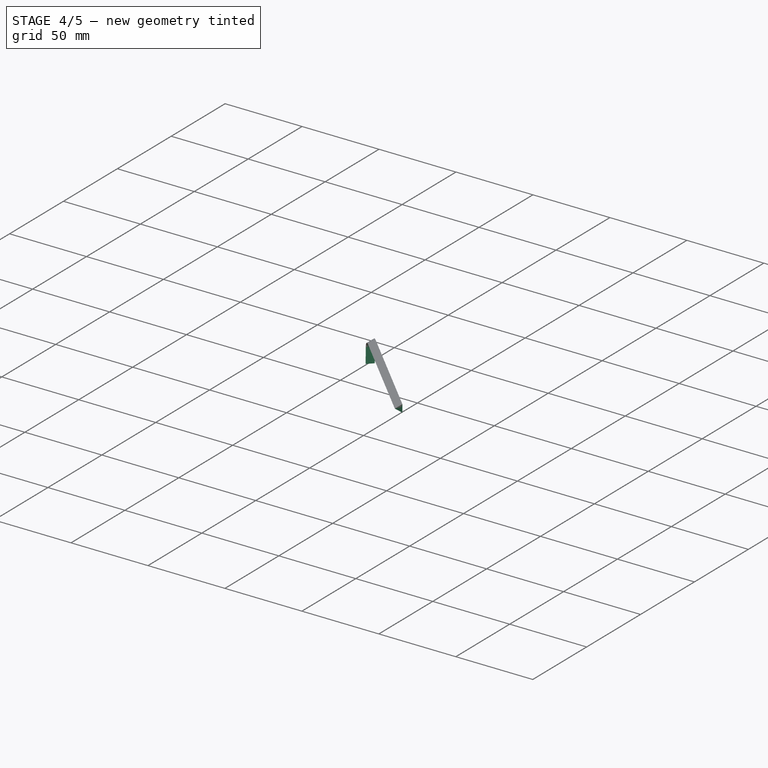
[diagram: stage 4 of 5 — iso view after this stage's code; geometry added in this stage tinted green]
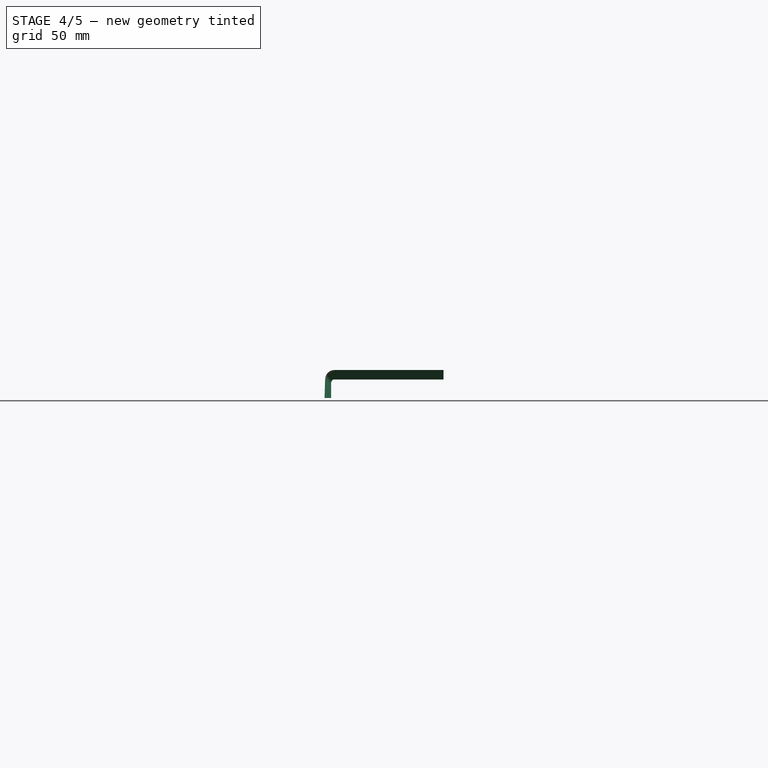
[diagram: stage 4 of 5 — front view after this stage's code; geometry added in this stage tinted green]
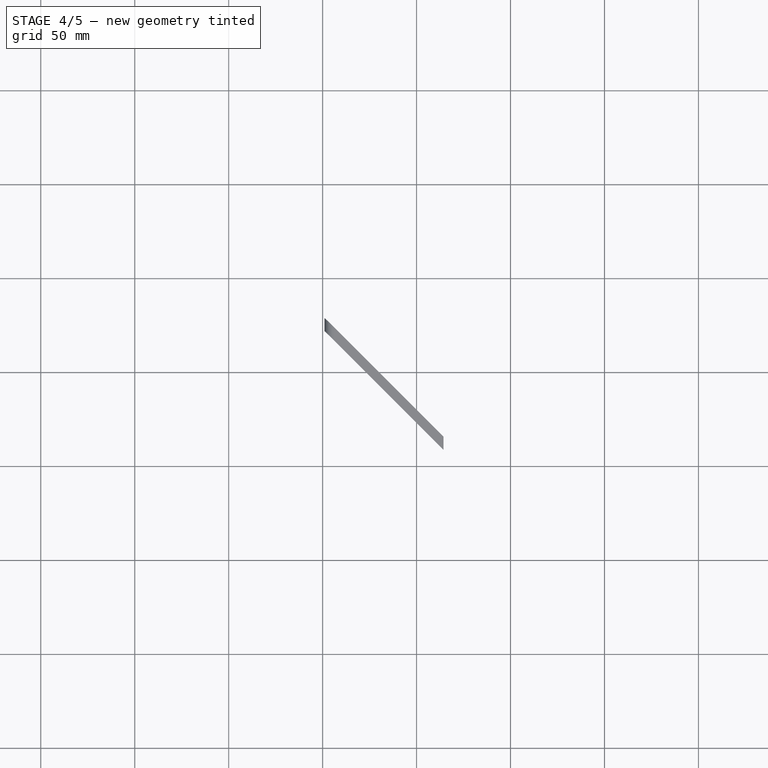
[diagram: stage 4 of 5 — top view after this stage's code; geometry added in this stage tinted green]
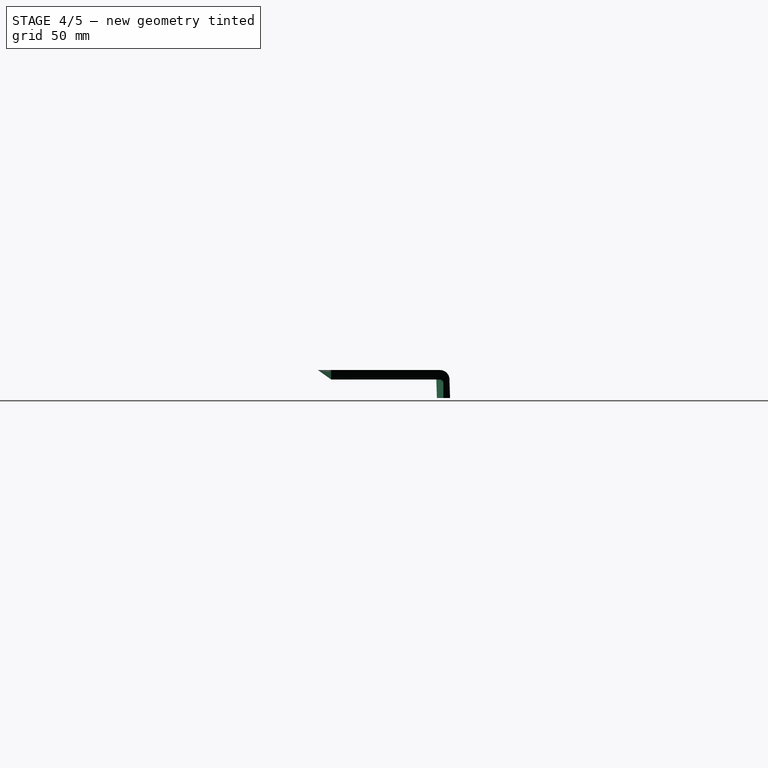
[diagram: stage 4 of 5 — right view after this stage's code; geometry added in this stage tinted green]
FEATURE [Part::Feature] Projection_Object  label="Projection Object"
  Placement = pos=(0,-1,0) rot=(0,0,1;0rad)
  shape: bbox 73.68 x 73.68 x 47 mm, 0 faces, 0 solids (baked)
FEATURE [Sketcher::SketchObject] Sketch021
  FullyConstrained = true
  MapMode = 5
  Placement = pos=(33.5,-88.55,59) rot=(0.862856,-0.357407,-0.357407;1.71777rad)
  Support = -> [ShapeBinder001]
  sketch-geometry (3):
    g0: LineSegment StartX=-45.4936 StartY=-4.84 StartZ=0 EndX=-45.9425 EndY=-14.84 EndZ=0
    g1: LineSegment StartX=-38.4236 StartY=0 StartZ=0 EndX=43.5764 EndY=0 EndZ=0
    g2: ArcOfEllipse CenterX=-38.4236 CenterY=-4.99846 CenterZ=0 NormalX=0 NormalY=0 NormalZ=1 MajorRadius=7.07356 MinorRadius=4.99846 AngleXU=-3.14159 StartAngle=4.71239 EndAngle=6.25148
  constraints (11):
    c: Vertical(g1,g2)
    c: Tangent(g2,g0) = -1.5708
    c: Tangent(g2,g1) = 1.5708
    c: DistanceX(g1,g1) = 82
    c: DistanceY(g0,g0) = 10
    c: Horizontal(g1)
    c: Horizontal(g-1,g1)
    c: DistanceX(g1,g-1) = 38.4236
    c: DistanceX(g0,g1) = 7.07
    c: DistanceY(g0,g1) = 4.84
    c: Angle(g0,g1) = 1.61565
FEATURE [PartDesign::ShapeBinder] ShapeBinder  label="SideProjectionBinder1"
  Placement = pos=(0,-1,0) rot=(0,0,1;0rad)
  Support = -> [Projection_Object]
  TraceSupport = false
FEATURE [Part::Feature] Projection_Object001  label="Projection Object001"
  shape: bbox 67.49 x 67.49 x 41.84 mm, 0 faces, 0 solids (baked)
FEATURE [PartDesign::ShapeBinder] ShapeBinder003  label="SideProjectionBinder2"
  Support = -> [Projection_Object001]
  TraceSupport = false
FEATURE [Sketcher::SketchObject] Sketch022
  FullyConstrained = true
  MapMode = 5
  Placement = pos=(33.5,-81.55,59) rot=(0.862856,-0.357407,-0.357407;1.71777rad)
  Support = -> [ShapeBinder002]
  sketch-geometry (6):
    g0: LineSegment StartX=-45.4936 StartY=-4.84 StartZ=0 EndX=-45.9425 EndY=-14.84 EndZ=0
    g1: LineSegment StartX=-38.4236 StartY=0 StartZ=0 EndX=43.5764 EndY=0 EndZ=0
    g2: ArcOfEllipse CenterX=-38.4236 CenterY=-4.99846 CenterZ=0 NormalX=0 NormalY=0 NormalZ=1 MajorRadius=7.07356 MinorRadius=4.99846 AngleXU=-3.14159 StartAngle=4.71239 EndAngle=6.25148
    g3: LineSegment StartX=-40.9425 StartY=-14.84 StartZ=0 EndX=-40.9425 EndY=-7 EndZ=0
    g4: LineSegment StartX=43.5764 StartY=-5 StartZ=0 EndX=-38.9425 EndY=-5 EndZ=0
    g5: ArcOfCircle CenterX=-38.9425 CenterY=-7 CenterZ=0 NormalX=0 NormalY=0 NormalZ=1 AngleXU=0 Radius=2 StartAngle=1.5708 EndAngle=3.14159
  constraints (20):
    c: Tangent(g2,g1) = 1.5708
    c: Tangent(g2,g0) = -1.5708
    c: Vertical(g2,g1)
    c: DistanceX(g1,g1) = 82
    c: DistanceY(g0,g0) = 10
    c: Vertical(g3)
    c: Horizontal(g4)
    c: Tangent(g5,g3) = 1.5708
    c: Tangent(g5,g4) = -1.5708
    c: Horizontal(g3,g0)
    c: Vertical(g4,g1)
    c: Radius(g5) = 2
    c: DistanceY(g4,g1) = 5
    c: DistanceX(g0,g3) = 5
    c: DistanceX(g1,g-1) = 38.4236
    c: Angle(g0,g1) = 1.61565
    c: DistanceX(g0,g1) = 7.07
    c: Horizontal(g1)
    c: PointOnObject(g-1,g1)
    c: DistanceY(g0,g1) = 4.84
FEATURE [PartDesign::Body] Body003  label="VentIntermediary"
  Group = -> [ShapeBinder001,ShapeBinder002,Sketch020,Pad010,Sketch021,ShapeBinder,ShapeBinder003,Sketch022]
  Origin = -> Origin004
  Tip = -> Pad010
FEATURE [App::Part] Part  label="CaseTop"
  Group = -> [Body,Body003]
  Origin = -> Origin003
FEATURE [Part::FeaturePython] Line  # WARN: FeaturePython — macro-defined, semantics opaque (R4)
  Vertex1 = -> Sketch022 [Vertex4]
  Vertex2 = -> Sketch022 [Vertex5]
FEATURE [Part::FeaturePython] Line001  # WARN: FeaturePython — macro-defined, semantics opaque (R4)
  Vertex1 = -> Sketch022 [Vertex4]
  Vertex2 = -> Sketch021 [Vertex4]
FEATURE [Part::FeaturePython] Line002  # WARN: FeaturePython — macro-defined, semantics opaque (R4)
  Vertex1 = -> Sketch022 [Vertex5]
  Vertex2 = -> Sketch021 [Vertex4]
FEATURE [Surface::GeomFillSurface] Surface
  BoundaryList = -> [Line,Line002,Line001]
  FillType = 0
FEATURE [Part::FeaturePython] Line003  # WARN: FeaturePython — macro-defined, semantics opaque (R4)
  Vertex1 = -> Sketch022 [Vertex8]
  Vertex2 = -> Sketch022 [Vertex2]
FEATURE [Part::FeaturePython] Line004  # WARN: FeaturePython — macro-defined, semantics opaque (R4)
  Vertex1 = -> Sketch022 [Vertex2]
  Vertex2 = -> Sketch021 [Vertex2]
FEATURE [Part::FeaturePython] Line005  # WARN: FeaturePython — macro-defined, semantics opaque (R4)
  Vertex1 = -> Sketch022 [Vertex8]
  Vertex2 = -> Sketch021 [Vertex2]
FEATURE [Surface::GeomFillSurface] Surface001
  BoundaryList = -> [Line003,Line004,Line005]
  FillType = 0
FEATURE [Part::FeaturePython] Line006  # WARN: FeaturePython — macro-defined, semantics opaque (R4)
  Vertex1 = -> Sketch022 [Vertex3]
  Vertex2 = -> Sketch022 [Vertex6]
FEATURE [Part::FeaturePython] Line007  # WARN: FeaturePython — macro-defined, semantics opaque (R4)
  Vertex1 = -> Sketch022 [Vertex6]
  Vertex2 = -> Sketch021 [Vertex3]
FEATURE [Part::FeaturePython] Line008  # WARN: FeaturePython — macro-defined, semantics opaque (R4)
  Vertex1 = -> Sketch021 [Vertex3]
  Vertex2 = -> Sketch022 [Vertex3]
FEATURE [Surface::GeomFillSurface] Surface002
  BoundaryList = -> [Line,Sketch022,Line006]
  FillType = 0
FEATURE [Surface::GeomFillSurface] Surface003
  BoundaryList = -> [Line002,Surface002,Line007,Sketch021]
  FillType = 0
FEATURE [Surface::GeomFillSurface] Surface004
  BoundaryList = -> [Sketch021,Line001,Sketch022,Line008]
  FillType = 0
FEATURE [Part::FeaturePython] Line009  # WARN: FeaturePython — macro-defined, semantics opaque (R4)
  Vertex1 = -> Sketch022 [Vertex7]
  Vertex2 = -> Sketch022 [Vertex1]
FEATURE [Part::FeaturePython] Line010  # WARN: FeaturePython — macro-defined, semantics opaque (R4)
  Vertex1 = -> Sketch022 [Vertex1]
  Vertex2 = -> Sketch021 [Vertex1]
FEATURE [Part::FeaturePython] Line011  # WARN: FeaturePython — macro-defined, semantics opaque (R4)
  Vertex1 = -> Sketch021 [Vertex1]
  Vertex2 = -> Sketch022 [Vertex7]
FEATURE [Surface::GeomFillSurface] Surface005
  BoundaryList = -> [Line006,Sketch022,Line009]
  FillType = 0
FEATURE [Surface::GeomFillSurface] Surface006
  BoundaryList = -> [Line007,Sketch022,Line011,Sketch021]
  FillType = 0
FEATURE [Surface::GeomFillSurface] Surface007
  BoundaryList = -> [Line008,Sketch022,Line010,Surface006]
  FillType = 0
FEATURE [Surface::GeomFillSurface] Surface008
  BoundaryList = -> [Line011,Sketch021,Line005,Sketch022]
  FillType = 0
FEATURE [Surface::GeomFillSurface] Surface009
  BoundaryList = -> [Line003,Sketch022,Line009,Surface008]
  FillType = 0
FEATURE [Surface::GeomFillSurface] Surface010
  BoundaryList = -> [Line004,Surface008,Line010,Sketch022]
  FillType = 0
FEATURE [Part::FeaturePython] Solid  label="VentSolid"  # WARN: FeaturePython — macro-defined, semantics opaque (R4)
  Faces = -> [Surface010,Surface005,Surface006,Surface007,Surface008,Surface009,Surface004,Surface003,Surface002,Surface001,Surface]
  Placement = pos=(0,0,0.1) rot=(0,0,1;0rad)
  ShapeStatus = Solid
FEATURE [PartDesign::Body] Body004
  Origin = -> Origin005
FEATURE [PartDesign::FeatureBase] Clone
  BaseFeature = -> Solid
  Placement = pos=(0,7,0) rot=(0,0,1;0rad)
FEATURE [PartDesign::Body] Body005
  Origin = -> Origin006
FEATURE [PartDesign::FeatureBase] Clone001
  BaseFeature = -> Clone
  Placement = pos=(0,-7,0) rot=(0,0,1;0rad)
FEATURE [PartDesign::Body] Body006
  Origin = -> Origin007
FEATURE [PartDesign::FeatureBase] Clone002
  BaseFeature = -> Clone001
  Placement = pos=(0,14,0) rot=(0,0,1;0rad)
FEATURE [PartDesign::Body] Body007
  Origin = -> Origin008
FEATURE [PartDesign::FeatureBase] Clone003
  BaseFeature = -> Clone002
  Placement = pos=(0,-14,0) rot=(0,0,1;0rad)
FEATURE [PartDesign::Body] Body008
  Origin = -> Origin009
FEATURE [PartDesign::FeatureBase] Clone004
  BaseFeature = -> Clone003
  Placement = pos=(0,21,0) rot=(0,0,1;0rad)
FEATURE [PartDesign::Body] Body009
  Origin = -> Origin010
FEATURE [PartDesign::FeatureBase] Clone005
  BaseFeature = -> Clone004
  Placement = pos=(0,-21,0) rot=(0,0,1;0rad)
FEATURE [PartDesign::Body] Body010
  Origin = -> Origin011
FEATURE [PartDesign::FeatureBase] Clone006
  BaseFeature = -> Clone005
  Placement = pos=(0,28,0) rot=(0,0,1;0rad)
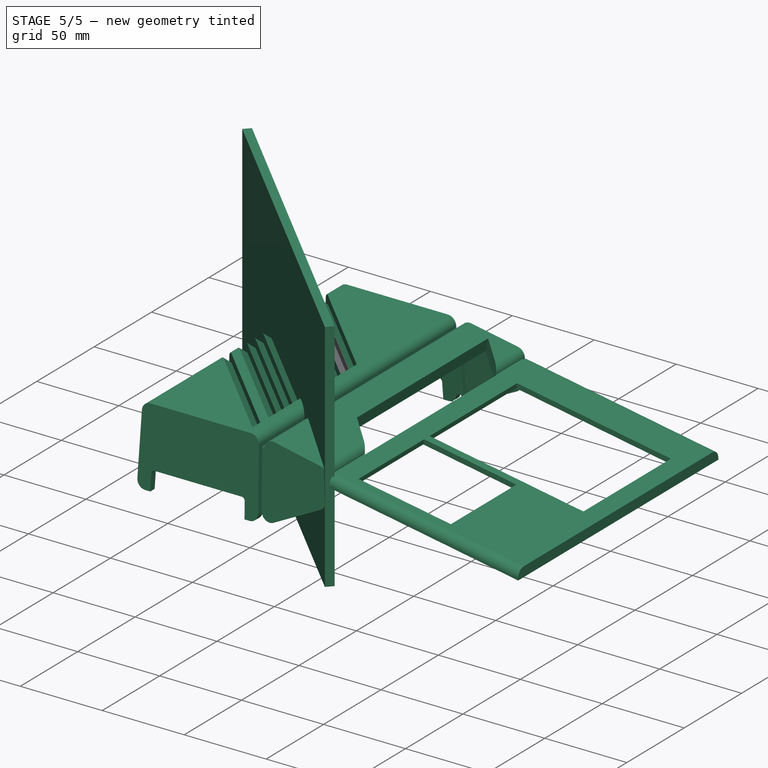
[diagram: stage 5 of 5 — iso view after this stage's code; geometry added in this stage tinted green]
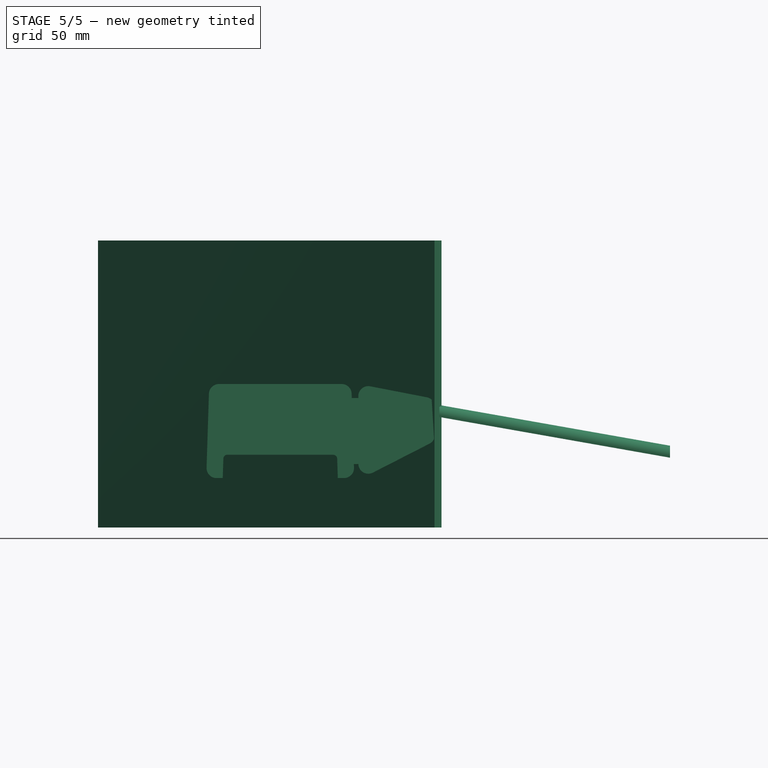
[diagram: stage 5 of 5 — front view after this stage's code; geometry added in this stage tinted green]
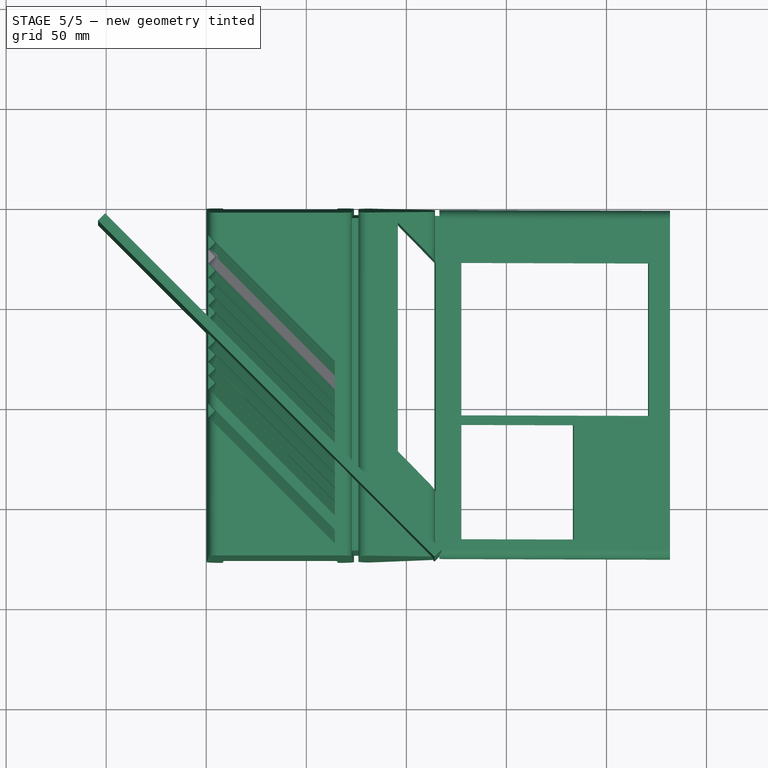
[diagram: stage 5 of 5 — top view after this stage's code; geometry added in this stage tinted green]
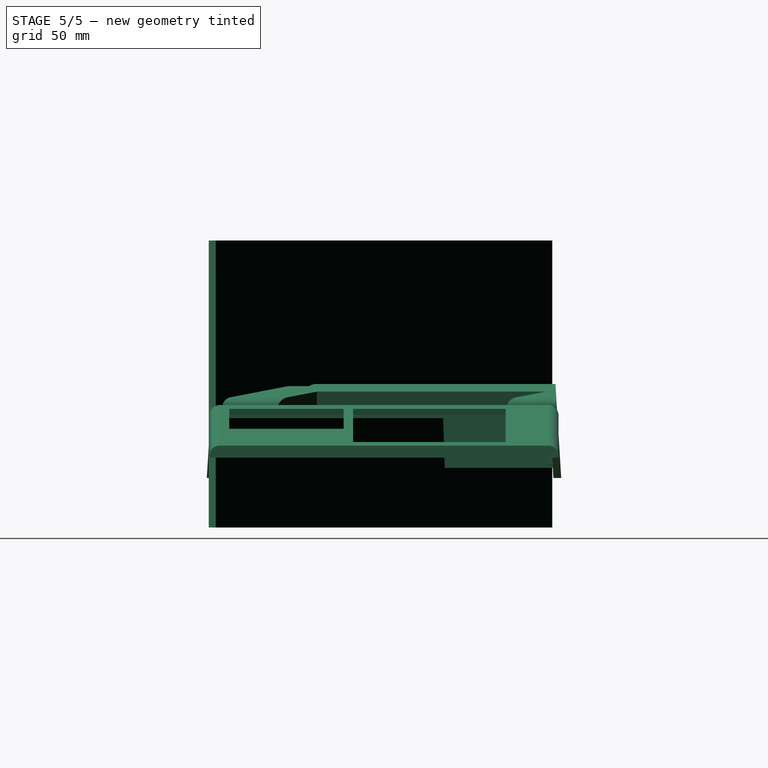
[diagram: stage 5 of 5 — right view after this stage's code; geometry added in this stage tinted green]
FEATURE [PartDesign::Plane] DatumPlane015  label="VentBasePlane1"
  AttachmentOffset = pos=(-3.5,0,0) rot=(0.862856,-0.357407,-0.357407;1.71777rad)
  Length = 357.453
  MapMode = 45
  Placement = pos=(33.5,-88.55,59) rot=(0.862856,-0.357407,-0.357407;1.71777rad)
  ResizeMode = 0
  Support = -> [Pocket005]
  Width = 117.017
FEATURE [PartDesign::Plane] DatumPlane016  label="VentBasePlane2"
  AttachmentOffset = pos=(-3.5,7,0) rot=(0.862856,-0.357407,-0.357407;1.71777rad)
  Length = 357.453
  MapMode = 45
  Placement = pos=(33.5,-81.55,59) rot=(0.862856,-0.357407,-0.357407;1.71777rad)
  ResizeMode = 0
  Support = -> [Pocket005]
  Width = 117.017
FEATURE [PartDesign::Body] Body  label="Top"
  Group = -> [Sketch,Pad,DatumPlane008,Fillet,DatumLine,DatumLine001,DatumLine002,DatumLine003,DatumPlane,DatumPlane001,Draft,Sketch003,Pocket,DatumPlane003,DatumPlane004,Sketch006,Pad003,DatumPlane005,Sketch007,Pad004,DatumLine006,DatumPlane006,Sketch008,Pad005,Sketch010,Pad007,Boolean,Sketch011,DatumPlane009,Pocket003,DatumLine013,DatumLine014,Sketch012,Pad008,DatumLine016,Sketch013,DatumLine017,Pad009,+16 more]
  Origin = -> Origin
  Tip = -> Pocket005
FEATURE [PartDesign::ShapeBinder] ShapeBinder001  label="VentBasePlane1Binder"
  Placement = pos=(33.5,-88.55,59) rot=(0.862856,-0.357407,-0.357407;1.71777rad)
  Support = -> [DatumPlane015]
  TraceSupport = false
FEATURE [PartDesign::ShapeBinder] ShapeBinder002  label="VentBasePlane2Binder"
  Placement = pos=(33.5,-81.55,59) rot=(0.862856,-0.357407,-0.357407;1.71777rad)
  Support = -> [DatumPlane016]
  TraceSupport = false
FEATURE [Sketcher::SketchObject] Sketch020
  FullyConstrained = true
  MapMode = 5
  Placement = pos=(33.5,-88.55,59) rot=(0.862856,-0.357407,-0.357407;1.71777rad)
  Support = -> [ShapeBinder001]
  sketch-geometry (6):
    g0: LineSegment StartX=-118.88 StartY=71.68 StartZ=0 EndX=118.88 EndY=71.68 EndZ=0
    g1: LineSegment StartX=118.88 StartY=71.68 StartZ=0 EndX=118.88 EndY=-71.68 EndZ=0
    g2: LineSegment StartX=118.88 StartY=-71.68 StartZ=0 EndX=-118.88 EndY=-71.68 EndZ=0
    g3: LineSegment StartX=-118.88 StartY=-71.68 StartZ=0 EndX=-118.88 EndY=71.68 EndZ=0
    g4: LineSegment StartX=-118.88 StartY=-71.68 StartZ=0 EndX=118.88 EndY=71.68 EndZ=0
    g5: LineSegment StartX=-118.88 StartY=71.68 StartZ=0 EndX=118.88 EndY=-71.68 EndZ=0
  constraints (16):
    c: Coincident(g0,g1)
    c: Coincident(g1,g2)
    c: Coincident(g2,g3)
    c: Coincident(g3,g0)
    c: Horizontal(g0)
    c: Horizontal(g2)
    c: Vertical(g1)
    c: Vertical(g3)
    c: Coincident(g4,g2)
    c: Coincident(g4,g0)
    c: PointOnObject(g-1,g4)
    c: DistanceX(g0,g0) = 237.76
    c: DistanceY(g3,g3) = 143.36
    c: Coincident(g5,g0)
    c: Coincident(g5,g1)
    c: PointOnObject(g-1,g5)
FEATURE [PartDesign::Pad] Pad010  label="IntermediaryProjectionTarget"
  Direction = (-0.707107,-0.707107,-5e-16)
  Length = 4.94975
  Length2 = 10
  Placement = pos=(33.5,-88.55,59) rot=(0.862856,-0.357407,-0.357407;1.71777rad)
  Profile = -> Sketch020
  ReferenceAxis = -> Sketch020 [N_Axis]
  Type = 0
  expr: Length = 7 / sqrt(2)
FEATURE [PartDesign::Body] Body011
  Origin = -> Origin012
FEATURE [PartDesign::FeatureBase] Clone007
  BaseFeature = -> Clone006
  Placement = pos=(0,-28,0) rot=(0,0,1;0rad)
FEATURE [PartDesign::Body] Body012
  Origin = -> Origin013
FEATURE [PartDesign::FeatureBase] Clone008
  BaseFeature = -> Clone007
  Placement = pos=(0,35,0) rot=(0,0,1;0rad)
FEATURE [PartDesign::Body] Body013
  Origin = -> Origin014
FEATURE [PartDesign::FeatureBase] Clone009
  BaseFeature = -> Clone008
  Placement = pos=(0,-35,0) rot=(0,0,1;0rad)
FEATURE [PartDesign::Body] Body014
  Origin = -> Origin015
FEATURE [PartDesign::FeatureBase] Clone010
  BaseFeature = -> Clone009
FEATURE [PartDesign::Body] Body015
  Origin = -> Origin016
FEATURE [PartDesign::FeatureBase] Clone011
  BaseFeature = -> Clone010
  Placement = pos=(0,-49,0) rot=(0,0,1;0rad)
FEATURE [Part::Compound] Compound  label="Vents"
  Links = -> [Clone011,Body004,Body005,Body006,Body007,Body008,Body009,Body010,Body011,Body012,Body013,Body014,Body015,Origin005,Clone,Origin006,Clone001,Origin007,Clone002,Origin008,Clone003,Origin009,Clone004,Origin010,Clone005,Origin011,Clone006,Origin012,Clone007,Origin013,Clone008,Origin014,Clone009,Origin015,Clone010,Origin016,Solid]
  Placement = pos=(0,0,0.1) rot=(0,0,1;0rad)
FEATURE [Part::Cut] Cut
  Base = -> Body
  Tool = -> Compound
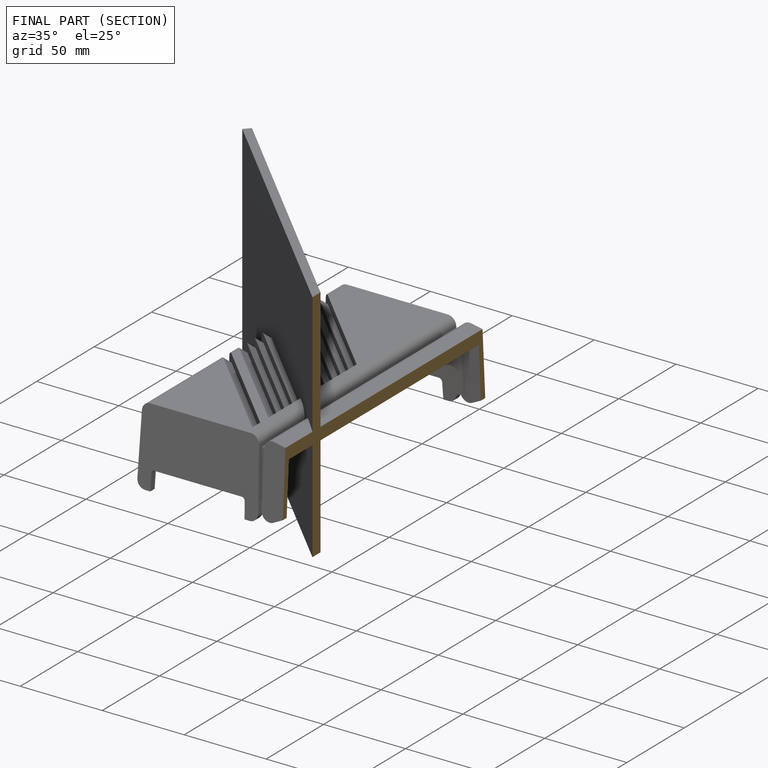
[diagram: finished part — half-section view (interior)]
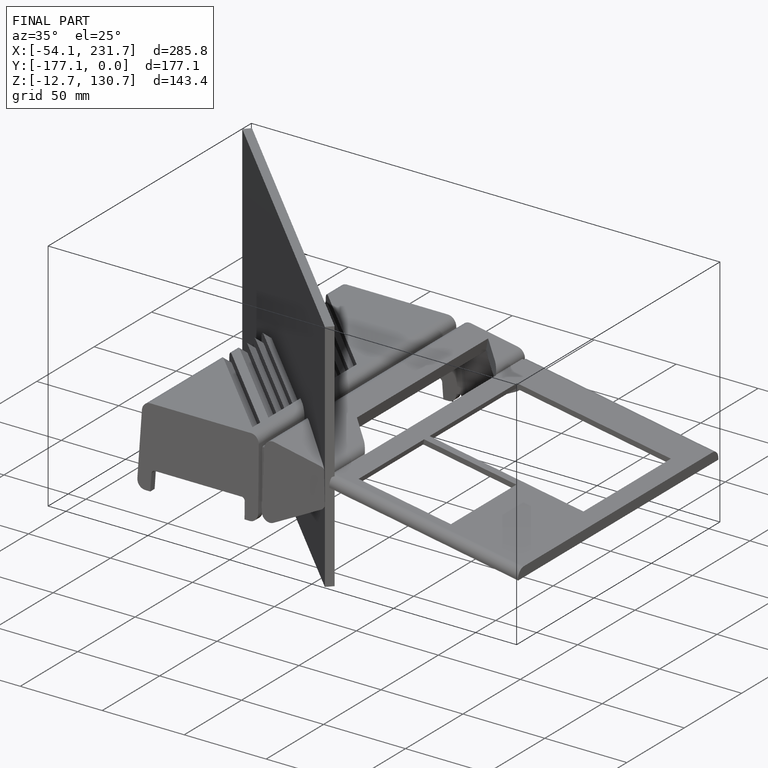
[diagram: finished part — iso view with bounding-box wireframe]
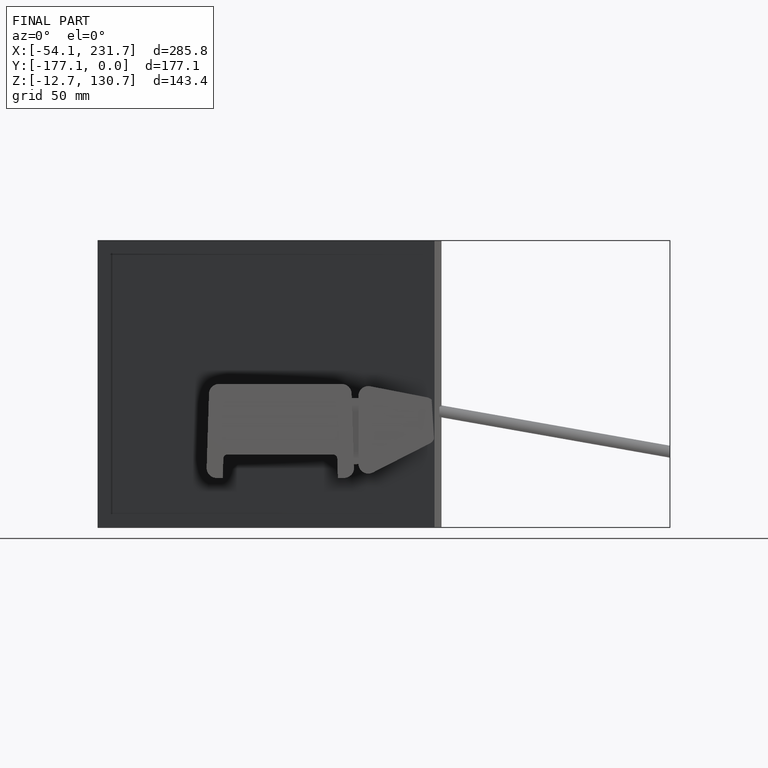
[diagram: finished part — front view with bounding-box wireframe]
